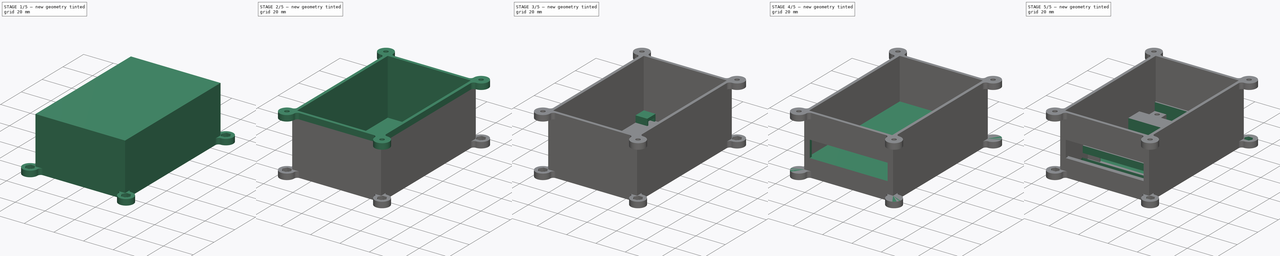
[diagram: build sequence overview — one tinted view per stage of 5, left to right]
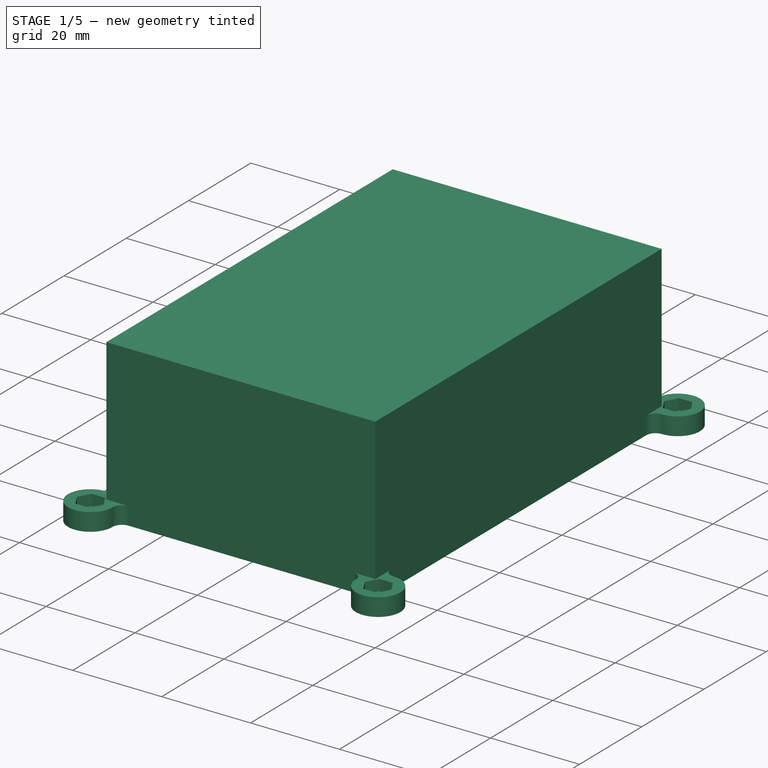
[diagram: stage 1 of 5 — iso view after this stage's code; geometry added in this stage tinted green]
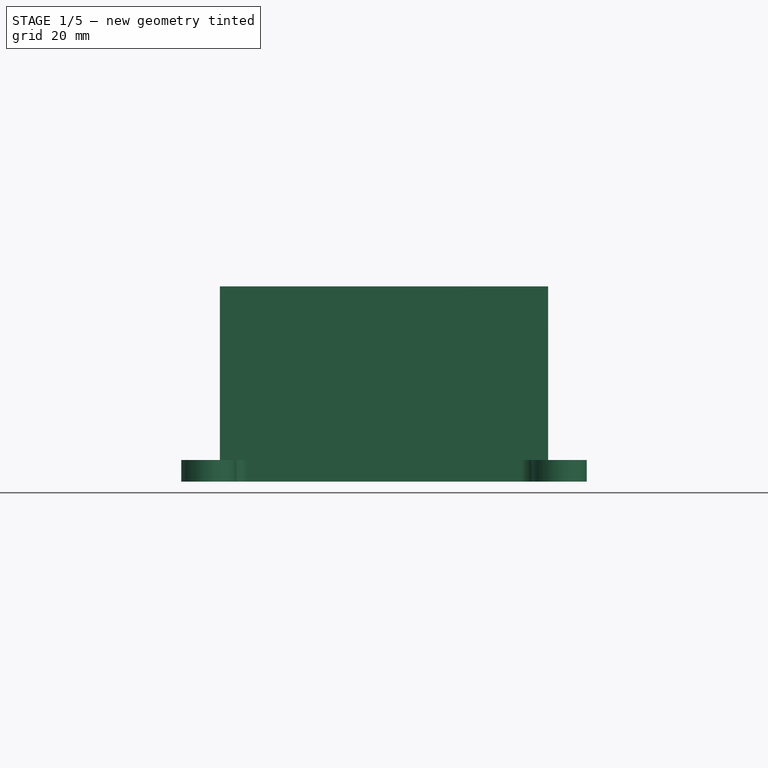
[diagram: stage 1 of 5 — front view after this stage's code; geometry added in this stage tinted green]
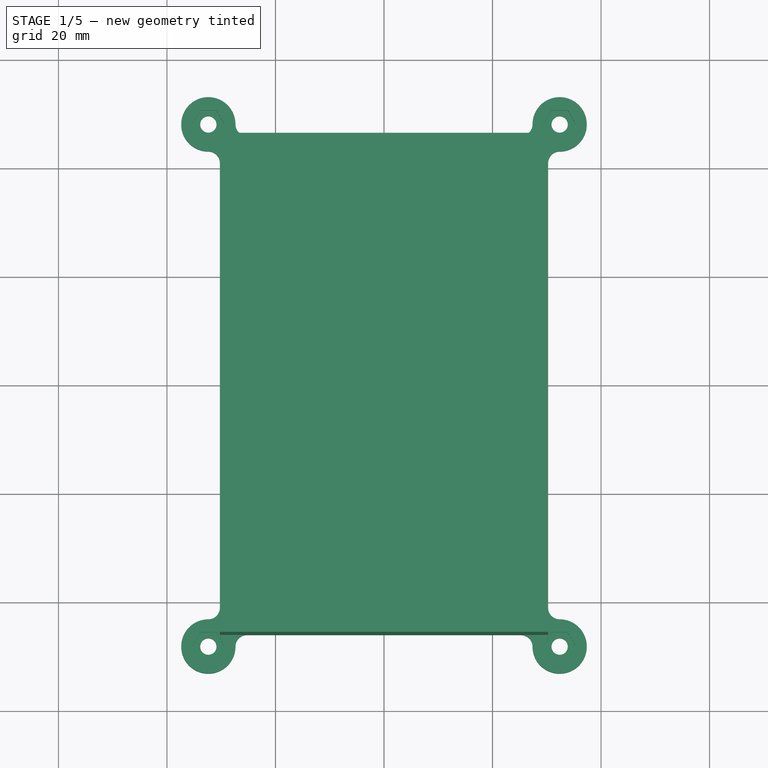
[diagram: stage 1 of 5 — top view after this stage's code; geometry added in this stage tinted green]
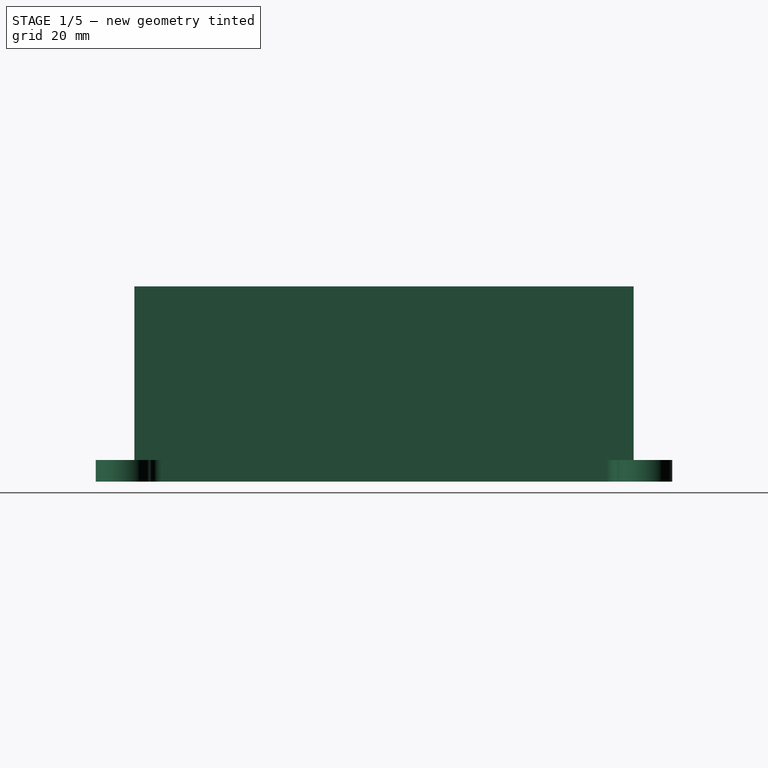
[diagram: stage 1 of 5 — right view after this stage's code; geometry added in this stage tinted green]
FCSTD DOCUMENT  (FreeCAD 1.0R39109 (Git))
Label: new fuselage
License: All rights reserved
LicenseURL: https://en.wikipedia.org/wiki/All_rights_reserved
objects: Sketcher::SketchObject×20, PartDesign::Pocket×13, PartDesign::Pad×6, PartDesign::Body×2
note: 99 computed .brp shape members not serialized (recipe doc carries the construction recipe); baked Part::Feature solids carry a one-line shape summary decoded from their .brp

FEATURE [PartDesign::Body] Body  label="Le Platform"
  AllowCompound = false
  Group = -> [Sketch,Pad,Sketch002,Sketch050,Sketch052,Pad001,Sketch051,Pocket,Pocket001,Pocket002,Sketch053,Pocket003]
  Origin = -> Origin
  Placement = pos=(0,0,1) rot=(0,0,1;0rad)
  Tip = -> Pocket003
FEATURE [Sketcher::SketchObject] Sketch054
  ArcFitTolerance = 0
  AttachmentSupport = -> [XY_Plane001]
  FullyConstrained = true
  MakeInternals = false
  MapMode = 5
  sketch-geometry (25):
    g0: ArcOfCircle CenterX=-32.3713 CenterY=48.1213 CenterZ=0 NormalX=0 NormalY=0 NormalZ=1 AngleXU=0 Radius=5 StartAngle=0 EndAngle=4.71239
    g1: ArcOfCircle CenterX=-25.25 CenterY=48.1213 CenterZ=0 NormalX=0 NormalY=0 NormalZ=1 AngleXU=0 Radius=2.12132 StartAngle=3.14159 EndAngle=4.71239
    g2: ArcOfCircle CenterX=-32.3713 CenterY=41 CenterZ=0 NormalX=0 NormalY=0 NormalZ=1 AngleXU=0 Radius=2.12132 StartAngle=-9e-16 EndAngle=1.5708
    g3: ArcOfCircle CenterX=32.3713 CenterY=48.1213 CenterZ=0 NormalX=0 NormalY=0 NormalZ=1 AngleXU=0 Radius=5 StartAngle=4.71239 EndAngle=9.42478
    g4: ArcOfCircle CenterX=25.25 CenterY=48.1213 CenterZ=0 NormalX=0 NormalY=0 NormalZ=1 AngleXU=0 Radius=2.12132 StartAngle=4.7124 EndAngle=6.28319
    g5: ArcOfCircle CenterX=32.3713 CenterY=41 CenterZ=0 NormalX=0 NormalY=0 NormalZ=1 AngleXU=0 Radius=2.12132 StartAngle=1.5708 EndAngle=3.14159
    g6: ArcOfCircle CenterX=-32.3713 CenterY=-48.1213 CenterZ=0 NormalX=0 NormalY=0 NormalZ=1 AngleXU=0 Radius=5 StartAngle=1.5708 EndAngle=6.28319
    g7: ArcOfCircle CenterX=-32.3713 CenterY=-41 CenterZ=0 NormalX=0 NormalY=0 NormalZ=1 AngleXU=0 Radius=2.12132 StartAngle=4.71239 EndAngle=6.28319
    g8: ArcOfCircle CenterX=-25.25 CenterY=-48.1213 CenterZ=0 NormalX=0 NormalY=0 NormalZ=1 AngleXU=0 Radius=2.12132 StartAngle=1.5708 EndAngle=3.14159
    g9: ArcOfCircle CenterX=32.3713 CenterY=-48.1213 CenterZ=0 NormalX=0 NormalY=0 NormalZ=1 AngleXU=0 Radius=5 StartAngle=3.14159 EndAngle=7.85398
    g10: ArcOfCircle CenterX=32.3713 CenterY=-41 CenterZ=0 NormalX=0 NormalY=0 NormalZ=1 AngleXU=0 Radius=2.12132 StartAngle=3.14159 EndAngle=4.71239
    g11: ArcOfCircle CenterX=25.25 CenterY=-48.1213 CenterZ=0 NormalX=0 NormalY=0 NormalZ=1 AngleXU=0 Radius=2.12132 StartAngle=2e-16 EndAngle=1.5708
    g12: LineSegment StartX=-25.25 StartY=-46 StartZ=0 EndX=25.25 EndY=-46 EndZ=0
    g13: LineSegment StartX=-30.25 StartY=41 StartZ=0 EndX=-30.25 EndY=-41 EndZ=0
    g14: LineSegment StartX=-25.25 StartY=46 StartZ=0 EndX=25.25 EndY=46 EndZ=0
    g15: LineSegment StartX=30.25 StartY=41 StartZ=0 EndX=30.25 EndY=-41 EndZ=0
    g16: LineSegment [constr] StartX=-25.25 StartY=46 StartZ=0 EndX=-30.25 EndY=46 EndZ=0
    g17: LineSegment [constr] StartX=-30.25 StartY=41 StartZ=0 EndX=-30.25 EndY=46 EndZ=0
    g18: LineSegment [constr] StartX=25.25 StartY=46 StartZ=0 EndX=30.25 EndY=46 EndZ=0
    g19: LineSegment [constr] StartX=30.25 StartY=41 StartZ=0 EndX=30.25 EndY=46 EndZ=0
    g20: LineSegment [constr] StartX=30.25 StartY=-41 StartZ=0 EndX=30.25 EndY=-46 EndZ=0
    g21: LineSegment [constr] StartX=25.25 StartY=-46 StartZ=0 EndX=30.25 EndY=-46 EndZ=0
    g22: LineSegment [constr] StartX=-30.25 StartY=-41 StartZ=0 EndX=-30.25 EndY=-46 EndZ=0
    g23: LineSegment [constr] StartX=-25.25 StartY=-46 StartZ=0 EndX=-30.25 EndY=-46 EndZ=0
    g24: Circle [constr] CenterX=-32.3713 CenterY=48.1213 CenterZ=0 NormalX=0 NormalY=0 NormalZ=1 AngleXU=0 Radius=3
  constraints (74):
    c: Radius(g0) = 5
    c: Coincident(g0,g1)
    c: Coincident(g2,g0)
    c: Equal(g0,g3)
    c: Symmetric(g0,g3,g-2)
    c: Horizontal(g3,g3)
    c: Vertical(g3,g3)
    c: Coincident(g4,g3)
    c: Coincident(g5,g3)
    c: Equal(g1,g4)
    c: Equal(g4,g5)
    c: Equal(g0,g6)
    c: Symmetric(g0,g6,g-1)
    c: Vertical(g6,g6)
    c: Horizontal(g6,g6)
    c: Coincident(g7,g6)
    c: Coincident(g8,g6)
    c: Equal(g3,g9)
    c: Symmetric(g6,g9,g-2)
    c: Coincident(g10,g9)
    c: Coincident(g11,g9)
    c: Horizontal(g9,g9)
    c: Vertical(g9,g9)
    c: Coincident(g12,g8)
    c: Coincident(g12,g11)
    c: Horizontal(g12)
    c: Tangent(g13,g2) = 1.5708
    c: Tangent(g14,g1) = -1.5708
    c: Coincident(g14,g4)
    c: Coincident(g15,g5)
    c: Tangent(g15,g10) = -1.5708
    c: Coincident(g16,g1)
    c: Horizontal(g16)
    c: Coincident(g17,g2)
    c: Coincident(g17,g16)
    c: Vertical(g17)
    c: DistanceX(g16,g-1) = 30.25
    c: DistanceY(g-1,g16) = 46
    c: Horizontal(g0,g0)
    c: Vertical(g0,g0)
    c: Coincident(g18,g4)
    c: Horizontal(g18)
    c: DistanceX(g16,g18) = 60.5
    c: Tangent(g20,g10) = -1.5708
    c: Vertical(g20)
    c: Coincident(g21,g11)
    c: Coincident(g21,g20)
    c: Horizontal(g21)
    c: Coincident(g22,g7)
    c: Vertical(g22)
    c: Tangent(g23,g8) = -1.5708
    c: Horizontal(g23)
    c: Coincident(g22,g23)
    c: DistanceY(g20,g18) = 92
    c: Horizontal(g1,g0)
    c: Vertical(g0,g2)
    c: Horizontal(g2,g2)
    c: Vertical(g1,g1)
    c: Horizontal(g3,g4)
    c: Horizontal(g5,g5)
    c: Coincident(g18,g19)
    c: Coincident(g5,g19)
    c: Vertical(g19)
    c: Vertical(g11,g11)
    c: Horizontal(g9,g11)
    c: Coincident(g24,g0)
    c: PointOnObject(g16,g24)
    c: Diameter(g24) = 6
    c: Equal(g7,g2)
    c: Equal(g1,g2)
    c: Equal(g10,g11)
    c: Equal(g8,g7)
    c: Coincident(g7,g13)
    c: Horizontal(g7,g7)
FEATURE [PartDesign::Pad] Pad002
  Direction = (0,0,1)
  Length = 4
  Length2 = 10
  Profile = -> Sketch054
  ReferenceAxis = -> Sketch054 [N_Axis]
  Suppressed = false
  Type = 0
FEATURE [Sketcher::SketchObject] Sketch058
  ArcFitTolerance = 1e-06
  AttachmentSupport = -> [Pad002]
  FullyConstrained = true
  MakeInternals = false
  MapMode = 5
  Placement = pos=(0,0,4) rot=(0,0,1;0rad)
  sketch-geometry (4):
    g0: LineSegment StartX=-30.25 StartY=46 StartZ=0 EndX=-30.25 EndY=-46 EndZ=0
    g1: LineSegment StartX=-30.25 StartY=-46 StartZ=0 EndX=30.25 EndY=-46 EndZ=0
    g2: LineSegment StartX=30.25 StartY=-46 StartZ=0 EndX=30.25 EndY=46 EndZ=0
    g3: LineSegment StartX=30.25 StartY=46 StartZ=0 EndX=-30.25 EndY=46 EndZ=0
  constraints (12):
    c: Coincident(g0,g1)
    c: Coincident(g1,g2)
    c: Coincident(g2,g3)
    c: Coincident(g3,g0)
    c: Vertical(g0)
    c: Vertical(g2)
    c: Horizontal(g1)
    c: Horizontal(g3)
    c: DistanceX(g2) = 30.25
    c: DistanceY(g2) = 46
    c: Distance(g3,g3) = 60.5
    c: DistanceY(g0,g0) = 92
FEATURE [PartDesign::Pad] Pad003
  BaseFeature = -> Pad002
  Direction = (0,0,1)
  Length = 32
  Length2 = 10
  Profile = -> Sketch058
  ReferenceAxis = -> Sketch058 [N_Axis]
  Refine = true
  Suppressed = false
  Type = 0
FEATURE [Sketcher::SketchObject] Sketch057
  ArcFitTolerance = 1e-06
  AttachmentSupport = -> [Pad003]
  FullyConstrained = true
  MakeInternals = false
  MapMode = 5
  Placement = pos=(0,0,4) rot=(0,0,1;0rad)
  sketch-geometry (28):
    g0: LineSegment StartX=-30.8713 StartY=50.7181 StartZ=0 EndX=-33.8713 EndY=50.7181 EndZ=0
    g1: LineSegment StartX=-33.8713 StartY=50.7181 StartZ=0 EndX=-35.3713 EndY=48.12 EndZ=0
    g2: LineSegment StartX=-35.3713 StartY=48.12 StartZ=0 EndX=-33.8713 EndY=45.5219 EndZ=0
    g3: LineSegment StartX=-33.8713 StartY=45.5219 StartZ=0 EndX=-30.8713 EndY=45.5219 EndZ=0
    g4: LineSegment StartX=-30.8713 StartY=45.5219 StartZ=0 EndX=-29.3713 EndY=48.12 EndZ=0
    g5: LineSegment StartX=-29.3713 StartY=48.12 StartZ=0 EndX=-30.8713 EndY=50.7181 EndZ=0
    g6: Circle [constr] CenterX=-32.3713 CenterY=48.12 CenterZ=0 NormalX=0 NormalY=0 NormalZ=1 AngleXU=0 Radius=3
    g7: LineSegment StartX=33.8713 StartY=50.7181 StartZ=0 EndX=30.8713 EndY=50.7181 EndZ=0
    g8: LineSegment StartX=30.8713 StartY=50.7181 StartZ=0 EndX=29.3713 EndY=48.12 EndZ=0
    g9: LineSegment StartX=29.3713 StartY=48.12 StartZ=0 EndX=30.8713 EndY=45.5219 EndZ=0
    g10: LineSegment StartX=30.8713 StartY=45.5219 StartZ=0 EndX=33.8713 EndY=45.5219 EndZ=0
    g11: LineSegment StartX=33.8713 StartY=45.5219 StartZ=0 EndX=35.3713 EndY=48.12 EndZ=0
    g12: LineSegment StartX=35.3713 StartY=48.12 StartZ=0 EndX=33.8713 EndY=50.7181 EndZ=0
    g13: Circle [constr] CenterX=32.3713 CenterY=48.12 CenterZ=0 NormalX=0 NormalY=0 NormalZ=1 AngleXU=0 Radius=3
    g14: LineSegment StartX=33.8713 StartY=-45.5219 StartZ=0 EndX=30.8713 EndY=-45.5219 EndZ=0
    g15: LineSegment StartX=30.8713 StartY=-45.5219 StartZ=0 EndX=29.3713 EndY=-48.12 EndZ=0
    g16: LineSegment StartX=29.3713 StartY=-48.12 StartZ=0 EndX=30.8713 EndY=-50.7181 EndZ=0
    g17: LineSegment StartX=30.8713 StartY=-50.7181 StartZ=0 EndX=33.8713 EndY=-50.7181 EndZ=0
    g18: LineSegment StartX=33.8713 StartY=-50.7181 StartZ=0 EndX=35.3713 EndY=-48.12 EndZ=0
    g19: LineSegment StartX=35.3713 StartY=-48.12 StartZ=0 EndX=33.8713 EndY=-45.5219 EndZ=0
    g20: Circle [constr] CenterX=32.3713 CenterY=-48.12 CenterZ=0 NormalX=0 NormalY=0 NormalZ=1 AngleXU=0 Radius=3
    g21: LineSegment StartX=-30.8713 StartY=-45.5219 StartZ=0 EndX=-33.8713 EndY=-45.5219 EndZ=0
    g22: LineSegment StartX=-33.8713 StartY=-45.5219 StartZ=0 EndX=-35.3713 EndY=-48.12 EndZ=0
    g23: LineSegment StartX=-35.3713 StartY=-48.12 StartZ=0 EndX=-33.8713 EndY=-50.7181 EndZ=0
    g24: LineSegment StartX=-33.8713 StartY=-50.7181 StartZ=0 EndX=-30.8713 EndY=-50.7181 EndZ=0
    g25: LineSegment StartX=-30.8713 StartY=-50.7181 StartZ=0 EndX=-29.3713 EndY=-48.12 EndZ=0
    g26: LineSegment StartX=-29.3713 StartY=-48.12 StartZ=0 EndX=-30.8713 EndY=-45.5219 EndZ=0
    g27: Circle [constr] CenterX=-32.3713 CenterY=-48.12 CenterZ=0 NormalX=0 NormalY=0 NormalZ=1 AngleXU=0 Radius=3
  constraints (65):
    c: Coincident(g0,g1)
    c: Coincident(g1,g2)
    c: Coincident(g2,g3)
    c: Coincident(g3,g4)
    c: Coincident(g4,g5)
    c: Coincident(g5,g0)
    c: Equal(g0, g1-g5) x5
    c: PointOnObject(g0,g6)
    c: PointOnObject(g1,g6)
    c: PointOnObject(g2,g6)
    c: PointOnObject(g3,g6)
    c: PointOnObject(g4,g6)
    c: PointOnObject(g5,g6)
    c: DistanceX(g6) = -32.3713
    c: DistanceY(g6) = 48.12
    c: Diameter(g6) = 6
    c: Horizontal(g6,g4)
    c: Coincident(g7,g8)
    c: Coincident(g8,g9)
    c: Coincident(g9,g10)
    c: Coincident(g10,g11)
    c: Coincident(g11,g12)
    c: Coincident(g12,g7)
    c: Equal(g7, g8-g12) x5
    c: PointOnObject(g7,g13)
    c: PointOnObject(g8,g13)
    c: PointOnObject(g9,g13)
    c: PointOnObject(g10,g13)
    c: PointOnObject(g11,g13)
    c: PointOnObject(g12,g13)
    c: Diameter(g13) = 6
    c: Symmetric(g13,g6,g-2)
    c: Coincident(g14,g15)
    c: Coincident(g15,g16)
    c: Coincident(g16,g17)
    c: Coincident(g17,g18)
    c: Coincident(g18,g19)
    c: Coincident(g19,g14)
    c: Equal(g14, g15-g19) x5
    c: PointOnObject(g14,g20)
    c: PointOnObject(g15,g20)
    c: PointOnObject(g16,g20)
    c: PointOnObject(g17,g20)
    c: PointOnObject(g18,g20)
    c: PointOnObject(g19,g20)
    c: Coincident(g21,g22)
    c: Coincident(g22,g23)
    c: Coincident(g23,g24)
    c: Coincident(g24,g25)
    c: Coincident(g25,g26)
    c: Coincident(g26,g21)
    c: Equal(g21, g22-g26) x5
    c: PointOnObject(g21,g27)
    c: PointOnObject(g22,g27)
    c: PointOnObject(g23,g27)
    c: PointOnObject(g24,g27)
    c: PointOnObject(g25,g27)
    c: PointOnObject(g26,g27)
    c: Horizontal(g16,g17)
    c: Horizontal(g23,g24)
    c: Diameter(g27) = 6
    c: Diameter(g20) = 6
    c: Symmetric(g20,g13,g-1)
    c: Symmetric(g20,g27,g-2)
    c: Horizontal(g7,g7)
FEATURE [PartDesign::Pocket] Pocket006
  BaseFeature = -> Pad003
  Direction = (0,0,-1)
  Length = 2.5
  Length2 = 5
  Profile = -> Sketch057
  ReferenceAxis = -> Sketch057 [N_Axis]
  Refine = true
  Suppressed = false
  Type = 0
FEATURE [Sketcher::SketchObject] Sketch059
  ArcFitTolerance = 1e-06
  AttachmentSupport = -> [Pocket006]
  FullyConstrained = true
  MakeInternals = false
  MapMode = 5
  Placement = pos=(0,0,1.5) rot=(0,0,1;0rad)
  sketch-geometry (4):
    g0: Circle CenterX=-32.3713 CenterY=48.12 CenterZ=0 NormalX=0 NormalY=0 NormalZ=1 AngleXU=0 Radius=1.5
    g1: Circle CenterX=32.3713 CenterY=48.12 CenterZ=0 NormalX=0 NormalY=0 NormalZ=1 AngleXU=0 Radius=1.5
    g2: Circle CenterX=-32.3713 CenterY=-48.12 CenterZ=0 NormalX=0 NormalY=0 NormalZ=1 AngleXU=0 Radius=1.5
    g3: Circle CenterX=32.3713 CenterY=-48.12 CenterZ=0 NormalX=0 NormalY=0 NormalZ=1 AngleXU=0 Radius=1.5
  constraints (9):
    c: Diameter(g0) = 3
    c: Equal(g0,g1)
    c: Equal(g3,g2)
    c: Symmetric(g0,g1,g-2)
    c: Symmetric(g3,g2,g-2)
    c: Symmetric(g0,g2,g-1)
    c: DistanceX(g0) = -32.3713
    c: DistanceY(g0) = 48.12
    c: Equal(g0,g2)
FEATURE [PartDesign::Pocket] Pocket007
  BaseFeature = -> Pocket006
  Direction = (0,0,-1)
  Length = 1.5
  Length2 = 5
  Profile = -> Sketch059
  ReferenceAxis = -> Sketch059 [N_Axis]
  Refine = true
  Suppressed = false
  Type = 0
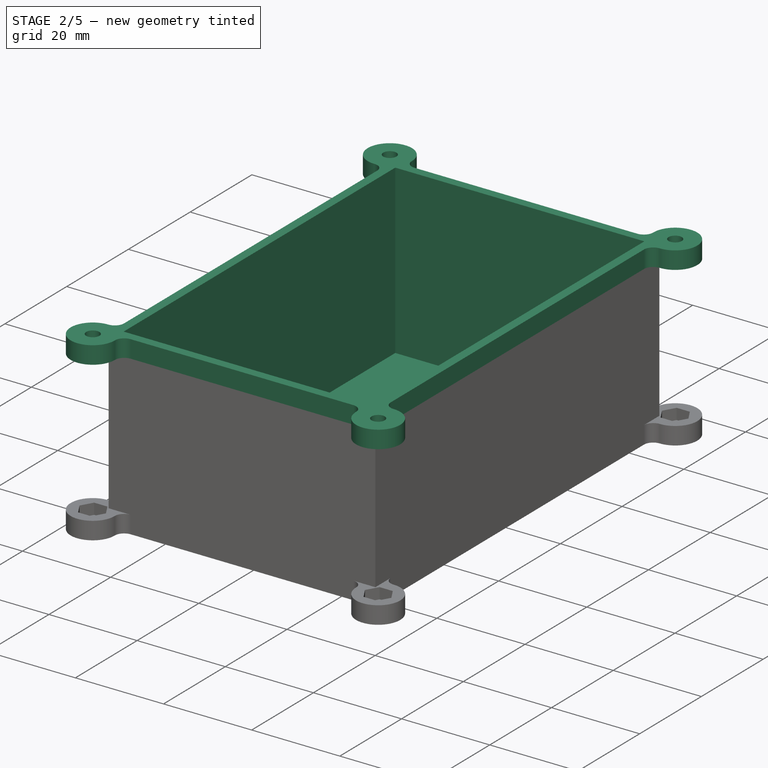
[diagram: stage 2 of 5 — iso view after this stage's code; geometry added in this stage tinted green]
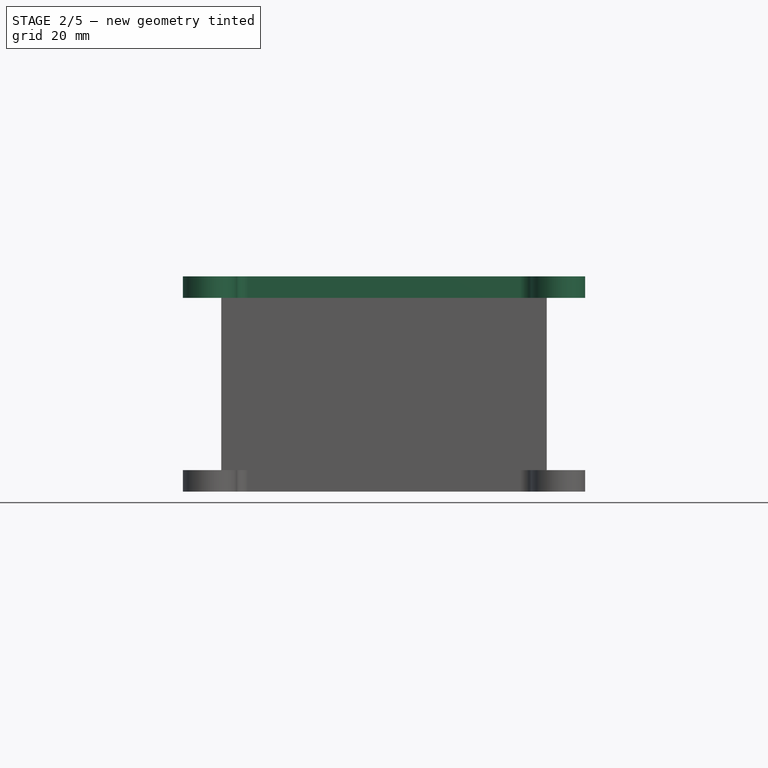
[diagram: stage 2 of 5 — front view after this stage's code; geometry added in this stage tinted green]
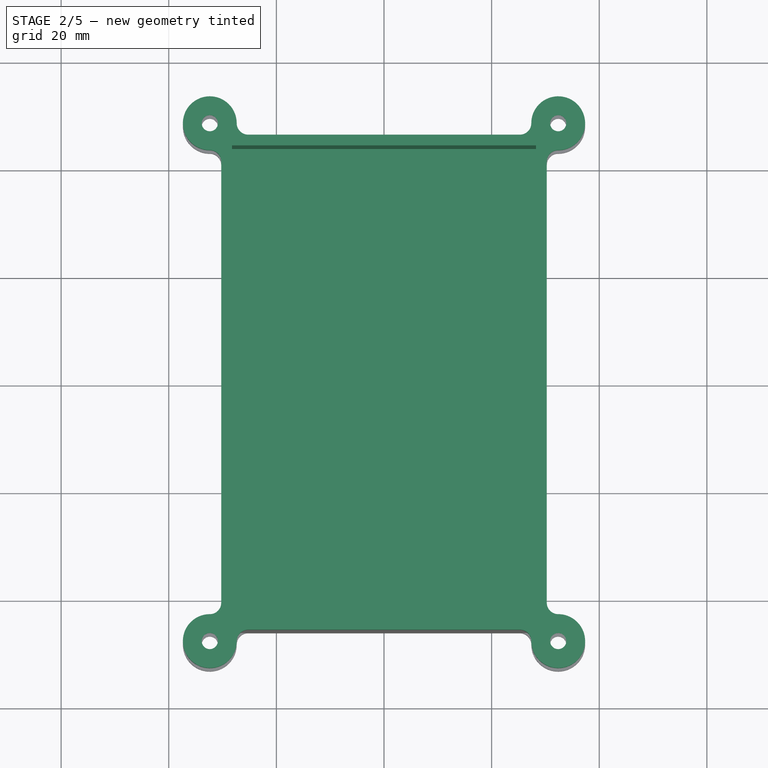
[diagram: stage 2 of 5 — top view after this stage's code; geometry added in this stage tinted green]
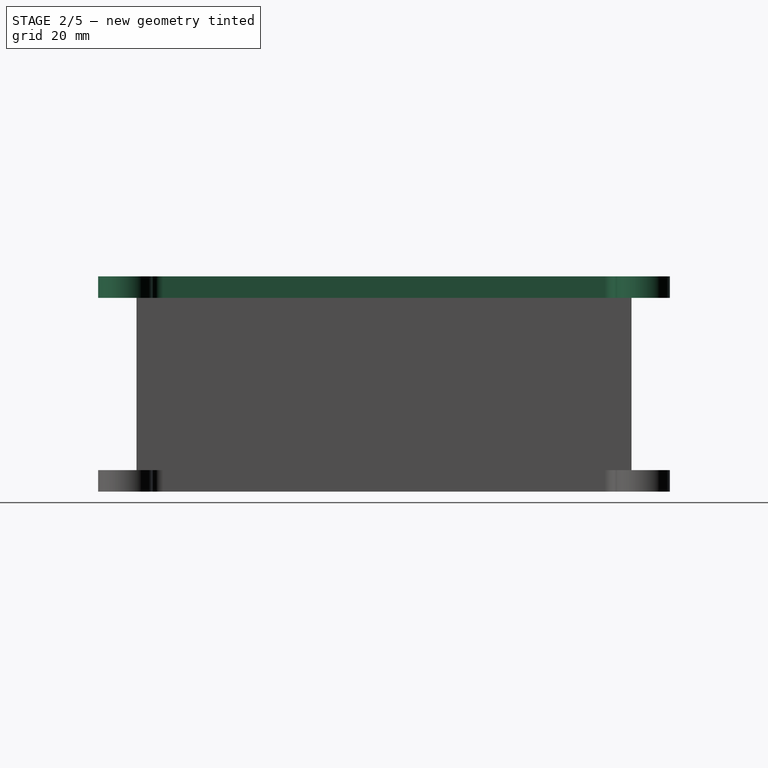
[diagram: stage 2 of 5 — right view after this stage's code; geometry added in this stage tinted green]
FEATURE [Sketcher::SketchObject] Sketch060
  ArcFitTolerance = 0
  AttachmentSupport = -> [Pocket007]
  FullyConstrained = true
  MakeInternals = false
  MapMode = 5
  Placement = pos=(0,0,36) rot=(0,0,1;0rad)
  sketch-geometry (25):
    g0: ArcOfCircle CenterX=-32.3713 CenterY=48.1213 CenterZ=0 NormalX=0 NormalY=0 NormalZ=1 AngleXU=0 Radius=5 StartAngle=0 EndAngle=4.71239
    g1: ArcOfCircle CenterX=-25.25 CenterY=48.1213 CenterZ=0 NormalX=0 NormalY=0 NormalZ=1 AngleXU=0 Radius=2.12132 StartAngle=3.14159 EndAngle=4.71239
    g2: ArcOfCircle CenterX=-32.3713 CenterY=41 CenterZ=0 NormalX=0 NormalY=0 NormalZ=1 AngleXU=0 Radius=2.12132 StartAngle=-9e-16 EndAngle=1.5708
    g3: ArcOfCircle CenterX=32.3713 CenterY=48.1213 CenterZ=0 NormalX=0 NormalY=0 NormalZ=1 AngleXU=0 Radius=5 StartAngle=4.71239 EndAngle=9.42478
    g4: ArcOfCircle CenterX=25.25 CenterY=48.1213 CenterZ=0 NormalX=0 NormalY=0 NormalZ=1 AngleXU=0 Radius=2.12132 StartAngle=4.7124 EndAngle=6.28319
    g5: ArcOfCircle CenterX=32.3713 CenterY=41 CenterZ=0 NormalX=0 NormalY=0 NormalZ=1 AngleXU=0 Radius=2.12132 StartAngle=1.5708 EndAngle=3.14159
    g6: ArcOfCircle CenterX=-32.3713 CenterY=-48.1213 CenterZ=0 NormalX=0 NormalY=0 NormalZ=1 AngleXU=0 Radius=5 StartAngle=1.5708 EndAngle=6.28319
    g7: ArcOfCircle CenterX=-32.3713 CenterY=-41 CenterZ=0 NormalX=0 NormalY=0 NormalZ=1 AngleXU=0 Radius=2.12132 StartAngle=4.71239 EndAngle=6.28319
    g8: ArcOfCircle CenterX=-25.25 CenterY=-48.1213 CenterZ=0 NormalX=0 NormalY=0 NormalZ=1 AngleXU=0 Radius=2.12132 StartAngle=1.5708 EndAngle=3.14159
    g9: ArcOfCircle CenterX=32.3713 CenterY=-48.1213 CenterZ=0 NormalX=0 NormalY=0 NormalZ=1 AngleXU=0 Radius=5 StartAngle=3.14159 EndAngle=7.85398
    g10: ArcOfCircle CenterX=32.3713 CenterY=-41 CenterZ=0 NormalX=0 NormalY=0 NormalZ=1 AngleXU=0 Radius=2.12132 StartAngle=3.14159 EndAngle=4.71239
    g11: ArcOfCircle CenterX=25.25 CenterY=-48.1213 CenterZ=0 NormalX=0 NormalY=0 NormalZ=1 AngleXU=0 Radius=2.12132 StartAngle=2e-16 EndAngle=1.5708
    g12: LineSegment StartX=-25.25 StartY=-46 StartZ=0 EndX=25.25 EndY=-46 EndZ=0
    g13: LineSegment StartX=-30.25 StartY=41 StartZ=0 EndX=-30.25 EndY=-41 EndZ=0
    g14: LineSegment StartX=-25.25 StartY=46 StartZ=0 EndX=25.25 EndY=46 EndZ=0
    g15: LineSegment StartX=30.25 StartY=41 StartZ=0 EndX=30.25 EndY=-41 EndZ=0
    g16: LineSegment [constr] StartX=-25.25 StartY=46 StartZ=0 EndX=-30.25 EndY=46 EndZ=0
    g17: LineSegment [constr] StartX=-30.25 StartY=41 StartZ=0 EndX=-30.25 EndY=46 EndZ=0
    g18: LineSegment [constr] StartX=25.25 StartY=46 StartZ=0 EndX=30.25 EndY=46 EndZ=0
    g19: LineSegment [constr] StartX=30.25 StartY=41 StartZ=0 EndX=30.25 EndY=46 EndZ=0
    g20: LineSegment [constr] StartX=30.25 StartY=-41 StartZ=0 EndX=30.25 EndY=-46 EndZ=0
    g21: LineSegment [constr] StartX=25.25 StartY=-46 StartZ=0 EndX=30.25 EndY=-46 EndZ=0
    g22: LineSegment [constr] StartX=-30.25 StartY=-41 StartZ=0 EndX=-30.25 EndY=-46 EndZ=0
    g23: LineSegment [constr] StartX=-25.25 StartY=-46 StartZ=0 EndX=-30.25 EndY=-46 EndZ=0
    g24: Circle [constr] CenterX=-32.3713 CenterY=48.1213 CenterZ=0 NormalX=0 NormalY=0 NormalZ=1 AngleXU=0 Radius=3
  constraints (74):
    c: Radius(g0) = 5
    c: Coincident(g0,g1)
    c: Coincident(g2,g0)
    c: Equal(g0,g3)
    c: Symmetric(g0,g3,g-2)
    c: Horizontal(g3,g3)
    c: Vertical(g3,g3)
    c: Coincident(g4,g3)
    c: Coincident(g5,g3)
    c: Equal(g1,g4)
    c: Equal(g4,g5)
    c: Equal(g0,g6)
    c: Symmetric(g0,g6,g-1)
    c: Vertical(g6,g6)
    c: Horizontal(g6,g6)
    c: Coincident(g7,g6)
    c: Coincident(g8,g6)
    c: Equal(g3,g9)
    c: Symmetric(g6,g9,g-2)
    c: Coincident(g10,g9)
    c: Coincident(g11,g9)
    c: Horizontal(g9,g9)
    c: Vertical(g9,g9)
    c: Coincident(g12,g8)
    c: Coincident(g12,g11)
    c: Horizontal(g12)
    c: Tangent(g13,g2) = 1.5708
    c: Tangent(g14,g1) = -1.5708
    c: Coincident(g14,g4)
    c: Coincident(g15,g5)
    c: Tangent(g15,g10) = -1.5708
    c: Coincident(g16,g1)
    c: Horizontal(g16)
    c: Coincident(g17,g2)
    c: Coincident(g17,g16)
    c: Vertical(g17)
    c: DistanceX(g16,g-1) = 30.25
    c: DistanceY(g-1,g16) = 46
    c: Horizontal(g0,g0)
    c: Vertical(g0,g0)
    c: Coincident(g18,g4)
    c: Horizontal(g18)
    c: DistanceX(g16,g18) = 60.5
    c: Tangent(g20,g10) = -1.5708
    c: Vertical(g20)
    c: Coincident(g21,g11)
    c: Coincident(g21,g20)
    c: Horizontal(g21)
    c: Coincident(g22,g7)
    c: Vertical(g22)
    c: Tangent(g23,g8) = -1.5708
    c: Horizontal(g23)
    c: Coincident(g22,g23)
    c: DistanceY(g20,g18) = 92
    c: Horizontal(g1,g0)
    c: Vertical(g0,g2)
    c: Horizontal(g2,g2)
    c: Vertical(g1,g1)
    c: Horizontal(g3,g4)
    c: Horizontal(g5,g5)
    c: Coincident(g18,g19)
    c: Coincident(g5,g19)
    c: Vertical(g19)
    c: Vertical(g11,g11)
    c: Horizontal(g9,g11)
    c: Coincident(g24,g0)
    c: PointOnObject(g16,g24)
    c: Diameter(g24) = 6
    c: Equal(g7,g2)
    c: Equal(g1,g2)
    c: Equal(g10,g11)
    c: Equal(g8,g7)
    c: Coincident(g7,g13)
    c: Horizontal(g7,g7)
FEATURE [PartDesign::Pad] Pad004
  BaseFeature = -> Pocket007
  Direction = (0,0,1)
  Length = 4
  Length2 = 10
  Profile = -> Sketch060
  ReferenceAxis = -> Sketch060 [N_Axis]
  Refine = true
  Suppressed = false
  Type = 0
FEATURE [Sketcher::SketchObject] Sketch061
  ArcFitTolerance = 1e-06
  AttachmentSupport = -> [Pad004]
  FullyConstrained = true
  MakeInternals = false
  MapMode = 5
  Placement = pos=(0,0,40) rot=(0,0,1;0rad)
  sketch-geometry (4):
    g0: LineSegment StartX=-28.25 StartY=44 StartZ=0 EndX=-28.25 EndY=-44 EndZ=0
    g1: LineSegment StartX=-28.25 StartY=-44 StartZ=0 EndX=28.25 EndY=-44 EndZ=0
    g2: LineSegment StartX=28.25 StartY=-44 StartZ=0 EndX=28.25 EndY=44 EndZ=0
    g3: LineSegment StartX=28.25 StartY=44 StartZ=0 EndX=-28.25 EndY=44 EndZ=0
  constraints (12):
    c: Coincident(g0,g1)
    c: Coincident(g1,g2)
    c: Coincident(g2,g3)
    c: Coincident(g3,g0)
    c: Vertical(g0)
    c: Vertical(g2)
    c: Horizontal(g1)
    c: Horizontal(g3)
    c: DistanceY(g0,g0) = 88
    c: DistanceX(g3,g3) = 56.5
    c: DistanceX(g2) = 28.25
    c: DistanceY(g2) = 44
FEATURE [PartDesign::Pocket] Pocket008
  BaseFeature = -> Pad004
  Direction = (0,0,-1)
  Length = 38
  Length2 = 5
  Profile = -> Sketch061
  ReferenceAxis = -> Sketch061 [N_Axis]
  Refine = true
  Suppressed = false
  Type = 0
FEATURE [Sketcher::SketchObject] Sketch062
  ArcFitTolerance = 1e-06
  AttachmentSupport = -> [Pocket008]
  FullyConstrained = true
  MakeInternals = false
  MapMode = 5
  Placement = pos=(0,0,36) rot=(1,0,0;3.14159rad)
  sketch-geometry (4):
    g0: Circle CenterX=-32.3713 CenterY=48.12 CenterZ=0 NormalX=0 NormalY=0 NormalZ=1 AngleXU=0 Radius=2.55
    g1: Circle CenterX=32.3713 CenterY=48.12 CenterZ=0 NormalX=0 NormalY=0 NormalZ=1 AngleXU=0 Radius=2.55
    g2: Circle CenterX=-32.3713 CenterY=-48.12 CenterZ=0 NormalX=0 NormalY=0 NormalZ=1 AngleXU=0 Radius=2.55
    g3: Circle CenterX=32.3713 CenterY=-48.12 CenterZ=0 NormalX=0 NormalY=0 NormalZ=1 AngleXU=0 Radius=2.55
  constraints (9):
    c: Diameter(g1) = 5.1
    c: Equal(g1,g0)
    c: Equal(g1,g3)
    c: Equal(g2,g3)
    c: Symmetric(g0,g1,g-2)
    c: Symmetric(g2,g3,g-2)
    c: Symmetric(g1,g3,g-1)
    c: DistanceX(g1) = 32.3713
    c: DistanceY(g1) = 48.12
FEATURE [PartDesign::Pocket] Pocket009
  BaseFeature = -> Pocket008
  Direction = (0,0,1)
  Length = 2.5
  Length2 = 5
  Profile = -> Sketch062
  ReferenceAxis = -> Sketch062 [N_Axis]
  Refine = true
  Suppressed = false
  Type = 0
FEATURE [Sketcher::SketchObject] Sketch063
  ArcFitTolerance = 1e-06
  AttachmentSupport = -> [Pocket009]
  FullyConstrained = true
  MakeInternals = false
  MapMode = 5
  Placement = pos=(0,0,40) rot=(0,0,1;0rad)
  sketch-geometry (4):
    g0: Circle CenterX=-32.3713 CenterY=48.12 CenterZ=0 NormalX=0 NormalY=0 NormalZ=1 AngleXU=0 Radius=1.5
    g1: Circle CenterX=32.3713 CenterY=48.12 CenterZ=0 NormalX=0 NormalY=0 NormalZ=1 AngleXU=0 Radius=1.5
    g2: Circle CenterX=-32.3713 CenterY=-48.12 CenterZ=0 NormalX=0 NormalY=0 NormalZ=1 AngleXU=0 Radius=1.5
    g3: Circle CenterX=32.3713 CenterY=-48.12 CenterZ=0 NormalX=0 NormalY=0 NormalZ=1 AngleXU=0 Radius=1.5
  constraints (9):
    c: Diameter(g0) = 3
    c: Diameter(g1) = 3
    c: Diameter(g2) = 3
    c: Diameter(g3) = 3
    c: Symmetric(g0,g1,g-2)
    c: Symmetric(g2,g3,g-2)
    c: Symmetric(g0,g2,g-1)
    c: DistanceX(g1) = 32.3713
    c: DistanceY(g1) = 48.12
FEATURE [PartDesign::Pocket] Pocket010
  BaseFeature = -> Pocket009
  Direction = (0,0,-1)
  Length = 1.5
  Length2 = 5
  Profile = -> Sketch063
  ReferenceAxis = -> Sketch063 [N_Axis]
  Refine = true
  Suppressed = false
  Type = 0
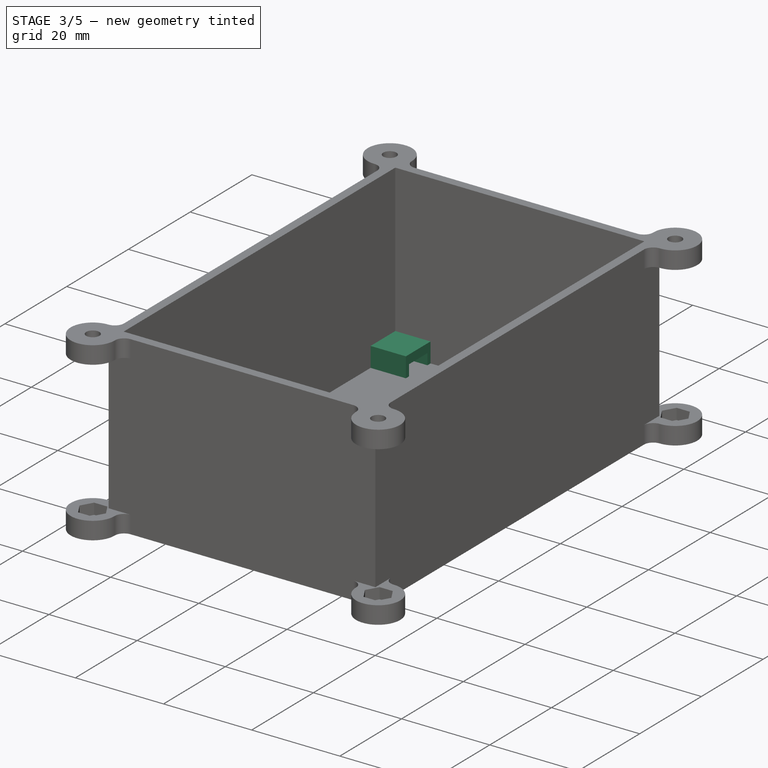
[diagram: stage 3 of 5 — iso view after this stage's code; geometry added in this stage tinted green]
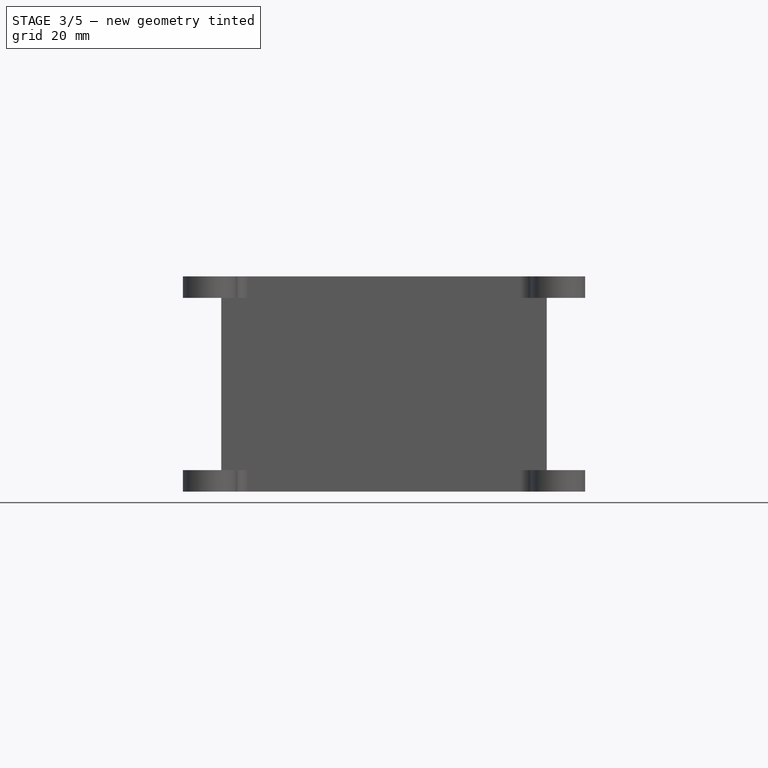
[diagram: stage 3 of 5 — front view after this stage's code; geometry added in this stage tinted green]
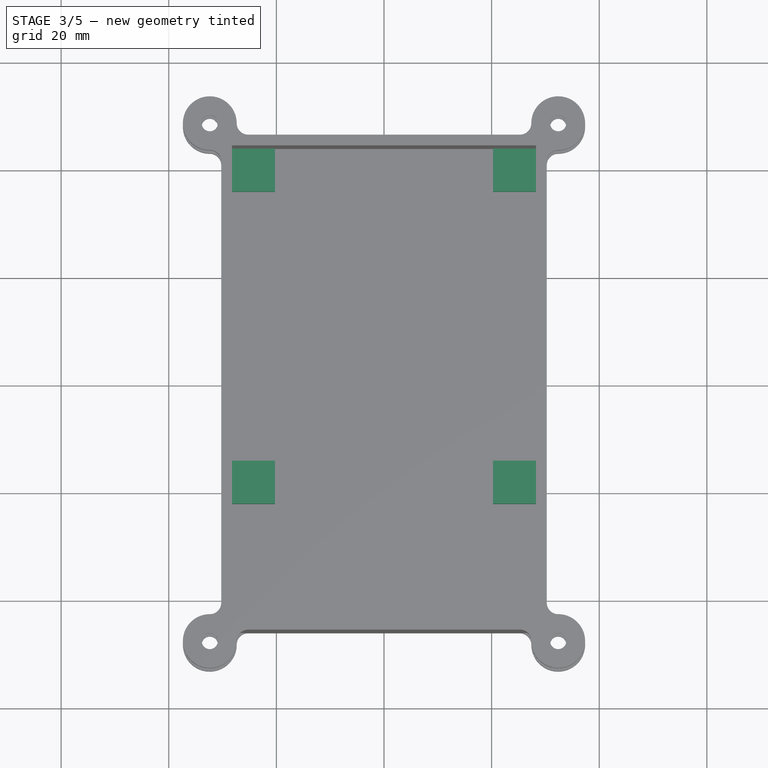
[diagram: stage 3 of 5 — top view after this stage's code; geometry added in this stage tinted green]
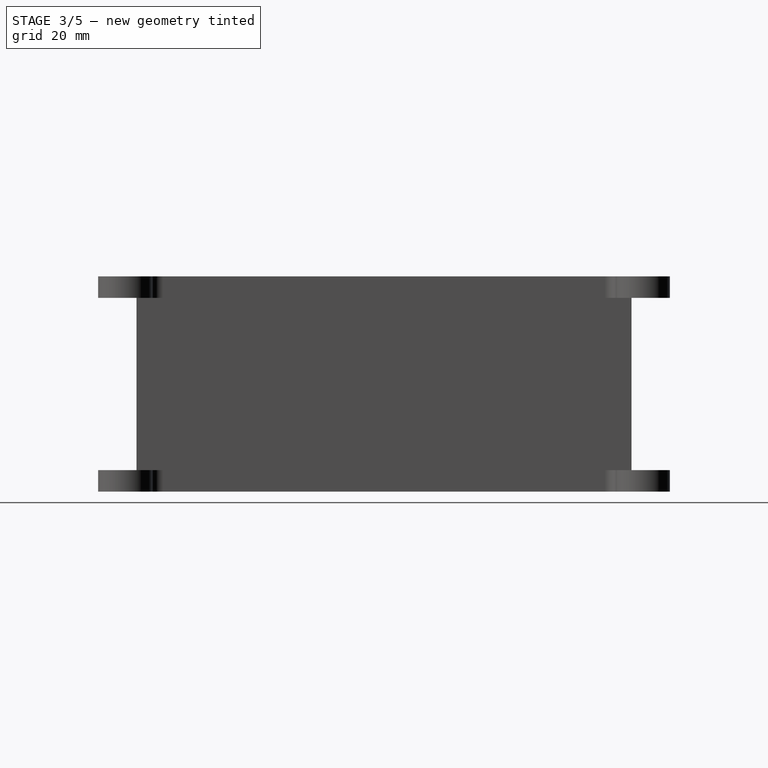
[diagram: stage 3 of 5 — right view after this stage's code; geometry added in this stage tinted green]
FEATURE [Sketcher::SketchObject] Sketch064
  ArcFitTolerance = 1e-06
  AttachmentSupport = -> [Pocket010]
  FullyConstrained = true
  MakeInternals = false
  MapMode = 5
  Placement = pos=(0,0,2) rot=(0,0,1;0rad)
  sketch-geometry (16):
    g0: LineSegment StartX=-28.25 StartY=44 StartZ=0 EndX=-28.25 EndY=36 EndZ=0
    g1: LineSegment StartX=-28.25 StartY=36 StartZ=0 EndX=-20.25 EndY=36 EndZ=0
    g2: LineSegment StartX=-20.25 StartY=36 StartZ=0 EndX=-20.25 EndY=44 EndZ=0
    g3: LineSegment StartX=-20.25 StartY=44 StartZ=0 EndX=-28.25 EndY=44 EndZ=0
    g4: LineSegment StartX=28.25 StartY=44 StartZ=0 EndX=20.25 EndY=44 EndZ=0
    g5: LineSegment StartX=20.25 StartY=44 StartZ=0 EndX=20.25 EndY=36 EndZ=0
    g6: LineSegment StartX=20.25 StartY=36 StartZ=0 EndX=28.25 EndY=36 EndZ=0
    g7: LineSegment StartX=28.25 StartY=36 StartZ=0 EndX=28.25 EndY=44 EndZ=0
    g8: LineSegment StartX=-28.25 StartY=-14 StartZ=0 EndX=-28.25 EndY=-22 EndZ=0
    g9: LineSegment StartX=-28.25 StartY=-22 StartZ=0 EndX=-20.25 EndY=-22 EndZ=0
    g10: LineSegment StartX=-20.25 StartY=-22 StartZ=0 EndX=-20.25 EndY=-14 EndZ=0
    g11: LineSegment StartX=-20.25 StartY=-14 StartZ=0 EndX=-28.25 EndY=-14 EndZ=0
    g12: LineSegment StartX=28.25 StartY=-14 StartZ=0 EndX=20.25 EndY=-14 EndZ=0
    g13: LineSegment StartX=20.25 StartY=-14 StartZ=0 EndX=20.25 EndY=-22 EndZ=0
    g14: LineSegment StartX=20.25 StartY=-22 StartZ=0 EndX=28.25 EndY=-22 EndZ=0
    g15: LineSegment StartX=28.25 StartY=-22 StartZ=0 EndX=28.25 EndY=-14 EndZ=0
  constraints (46):
    c: Coincident(g0,g1)
    c: Coincident(g1,g2)
    c: Coincident(g2,g3)
    c: Coincident(g3,g0)
    c: Vertical(g0)
    c: Vertical(g2)
    c: Horizontal(g1)
    c: Horizontal(g3)
    c: Coincident(g4,g5)
    c: Coincident(g5,g6)
    c: Coincident(g6,g7)
    c: Coincident(g7,g4)
    c: Horizontal(g4)
    c: Horizontal(g6)
    c: Vertical(g5)
    c: Vertical(g7)
    c: Coincident(g8,g9)
    c: Coincident(g9,g10)
    c: Coincident(g10,g11)
    c: Coincident(g11,g8)
    c: Vertical(g8)
    c: Vertical(g10)
    c: Horizontal(g9)
    c: Horizontal(g11)
    c: Coincident(g12,g13)
    c: Coincident(g13,g14)
    c: Coincident(g14,g15)
    c: Coincident(g15,g12)
    c: Horizontal(g12)
    c: Horizontal(g14)
    c: Vertical(g13)
    c: Vertical(g15)
    c: Distance(g3,g3) = 8
    c: DistanceY(g2,g2) = 8
    c: DistanceX(g0) = -28.25
    c: DistanceY(g0) = 44
    c: Equal(g2,g5)
    c: Equal(g6,g1)
    c: Symmetric(g2,g4,g-2)
    c: DistanceY(g12,g5) = 50
    c: Equal(g6,g12)
    c: Equal(g5,g13)
    c: Equal(g10,g13)
    c: Equal(g12,g11)
    c: Symmetric(g10,g12,g-2)
    c: Vertical(g1,g10)
FEATURE [PartDesign::Pad] Pad005
  BaseFeature = -> Pocket010
  Direction = (0,0,1)
  Length = 4.5
  Length2 = 10
  Profile = -> Sketch064
  ReferenceAxis = -> Sketch064 [N_Axis]
  Refine = true
  Suppressed = false
  Type = 0
FEATURE [Sketcher::SketchObject] Sketch065
  ArcFitTolerance = 1e-06
  AttachmentSupport = -> [Pad005]
  FullyConstrained = true
  MakeInternals = false
  MapMode = 5
  Placement = pos=(-20.25,0,0) rot=(0.57735,0.57735,0.57735;2.0944rad)
  sketch-geometry (8):
    g0: LineSegment StartX=-21 StartY=4.5 StartZ=0 EndX=-21 EndY=2 EndZ=0
    g1: LineSegment StartX=-21 StartY=2 StartZ=0 EndX=-15 EndY=2 EndZ=0
    g2: LineSegment StartX=-15 StartY=2 StartZ=0 EndX=-15 EndY=4.5 EndZ=0
    g3: LineSegment StartX=-15 StartY=4.5 StartZ=0 EndX=-21 EndY=4.5 EndZ=0
    g4: LineSegment StartX=37 StartY=4.5 StartZ=0 EndX=37 EndY=2 EndZ=0
    g5: LineSegment StartX=37 StartY=2 StartZ=0 EndX=43 EndY=2 EndZ=0
    g6: LineSegment StartX=43 StartY=2 StartZ=0 EndX=43 EndY=4.5 EndZ=0
    g7: LineSegment StartX=43 StartY=4.5 StartZ=0 EndX=37 EndY=4.5 EndZ=0
  constraints (24):
    c: Coincident(g0,g1)
    c: Coincident(g1,g2)
    c: Coincident(g2,g3)
    c: Coincident(g3,g0)
    c: Vertical(g0)
    c: Vertical(g2)
    c: Horizontal(g1)
    c: Horizontal(g3)
    c: Coincident(g4,g5)
    c: Coincident(g5,g6)
    c: Coincident(g6,g7)
    c: Coincident(g7,g4)
    c: Vertical(g4)
    c: Vertical(g6)
    c: Horizontal(g5)
    c: Horizontal(g7)
    c: Distance(g7,g7) = 6
    c: Distance(g4,g4) = 2.5
    c: Distance(g2,g2) = 2.5
    c: Distance(g3,g3) = 6
    c: DistanceX(g5) = 43
    c: DistanceY(g5) = 2
    c: DistanceX(g2,g4) = 52
    c: Horizontal(g2,g4)
FEATURE [PartDesign::Pocket] Pocket011
  BaseFeature = -> Pad005
  Direction = (-1,0,0)
  Length = 8
  Length2 = 5
  Profile = -> Sketch065
  ReferenceAxis = -> Sketch065 [N_Axis]
  Refine = true
  Suppressed = false
  Type = 0
FEATURE [Sketcher::SketchObject] Sketch066
  ArcFitTolerance = 1e-06
  AttachmentSupport = -> [Pocket011]
  FullyConstrained = true
  MakeInternals = false
  MapMode = 5
  Placement = pos=(20.25,0,0) rot=(0.57735,-0.57735,-0.57735;2.0944rad)
  sketch-geometry (8):
    g0: LineSegment StartX=-43 StartY=4.5 StartZ=0 EndX=-43 EndY=2 EndZ=0
    g1: LineSegment StartX=-43 StartY=2 StartZ=0 EndX=-37 EndY=2 EndZ=0
    g2: LineSegment StartX=-37 StartY=2 StartZ=0 EndX=-37 EndY=4.5 EndZ=0
    g3: LineSegment StartX=-37 StartY=4.5 StartZ=0 EndX=-43 EndY=4.5 EndZ=0
    g4: LineSegment StartX=15 StartY=4.5 StartZ=0 EndX=15 EndY=2 EndZ=0
    g5: LineSegment StartX=15 StartY=2 StartZ=0 EndX=21 EndY=2 EndZ=0
    g6: LineSegment StartX=21 StartY=2 StartZ=0 EndX=21 EndY=4.5 EndZ=0
    g7: LineSegment StartX=21 StartY=4.5 StartZ=0 EndX=15 EndY=4.5 EndZ=0
  constraints (24):
    c: Coincident(g0,g1)
    c: Coincident(g1,g2)
    c: Coincident(g2,g3)
    c: Coincident(g3,g0)
    c: Vertical(g0)
    c: Vertical(g2)
    c: Horizontal(g1)
    c: Horizontal(g3)
    c: Coincident(g4,g5)
    c: Coincident(g5,g6)
    c: Coincident(g6,g7)
    c: Coincident(g7,g4)
    c: Vertical(g4)
    c: Vertical(g6)
    c: Horizontal(g5)
    c: Horizontal(g7)
    c: DistanceX(g3,g3) = 6
    c: Equal(g7,g3)
    c: DistanceY(g2,g2) = 2.5
    c: Equal(g2,g4)
    c: DistanceX(g0) = -43
    c: DistanceY(g0) = 2
    c: DistanceX(g2,g4) = 52
    c: Horizontal(g1,g4)
FEATURE [PartDesign::Pocket] Pocket012
  BaseFeature = -> Pocket011
  Direction = (1,0,0)
  Length = 8
  Length2 = 5
  Profile = -> Sketch066
  ReferenceAxis = -> Sketch066 [N_Axis]
  Refine = true
  Suppressed = false
  Type = 0
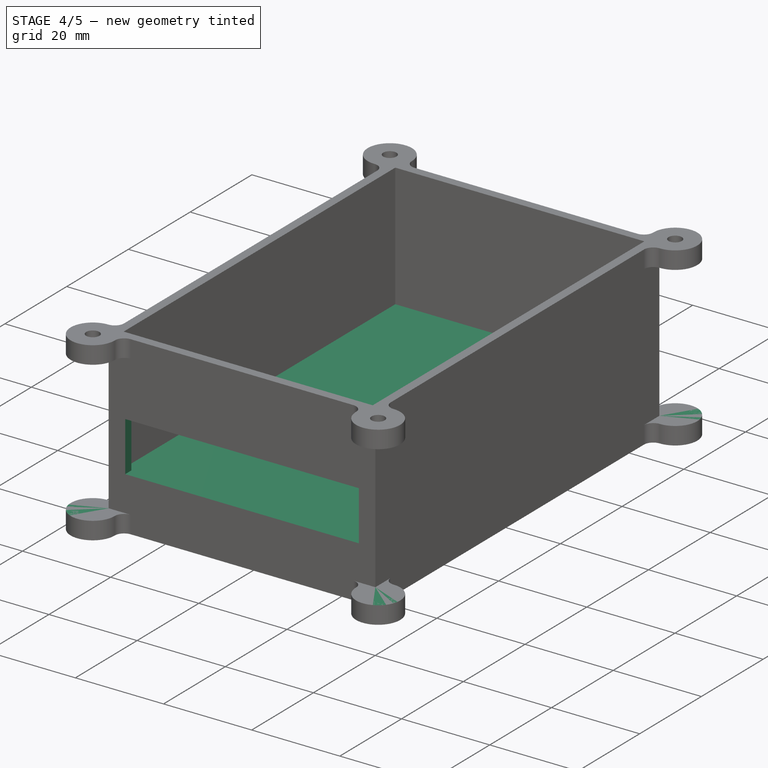
[diagram: stage 4 of 5 — iso view after this stage's code; geometry added in this stage tinted green]
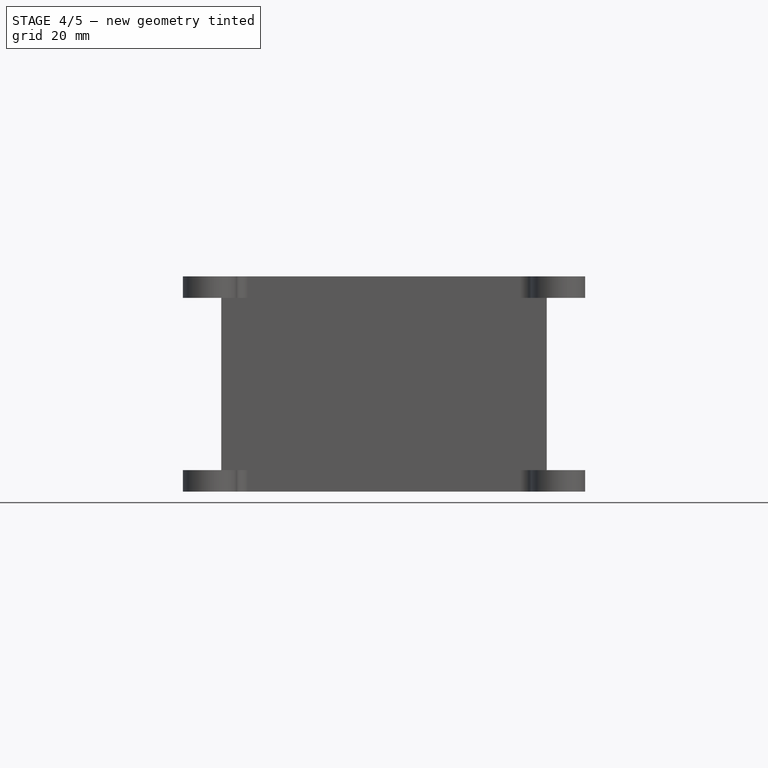
[diagram: stage 4 of 5 — front view after this stage's code; geometry added in this stage tinted green]
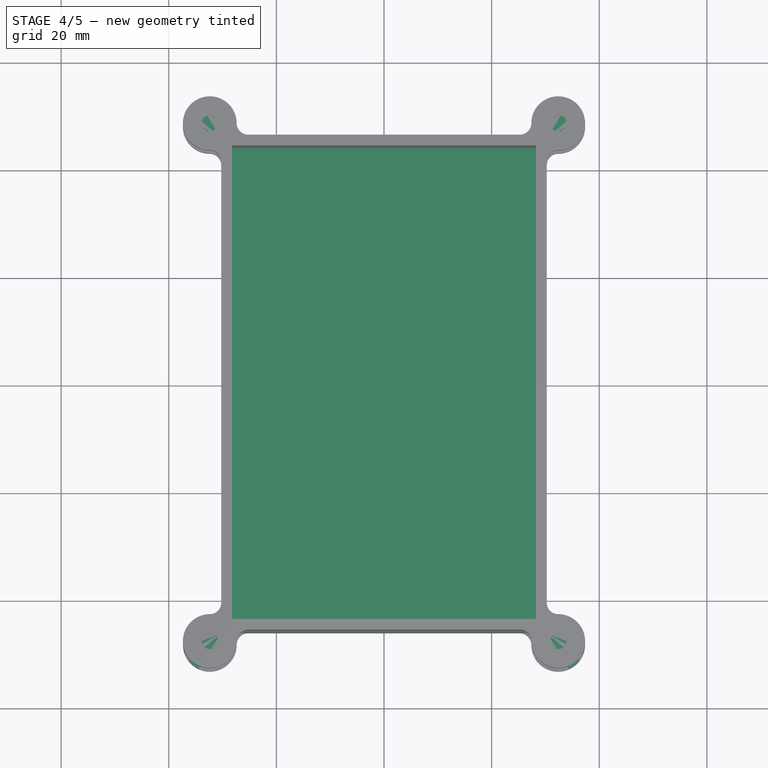
[diagram: stage 4 of 5 — top view after this stage's code; geometry added in this stage tinted green]
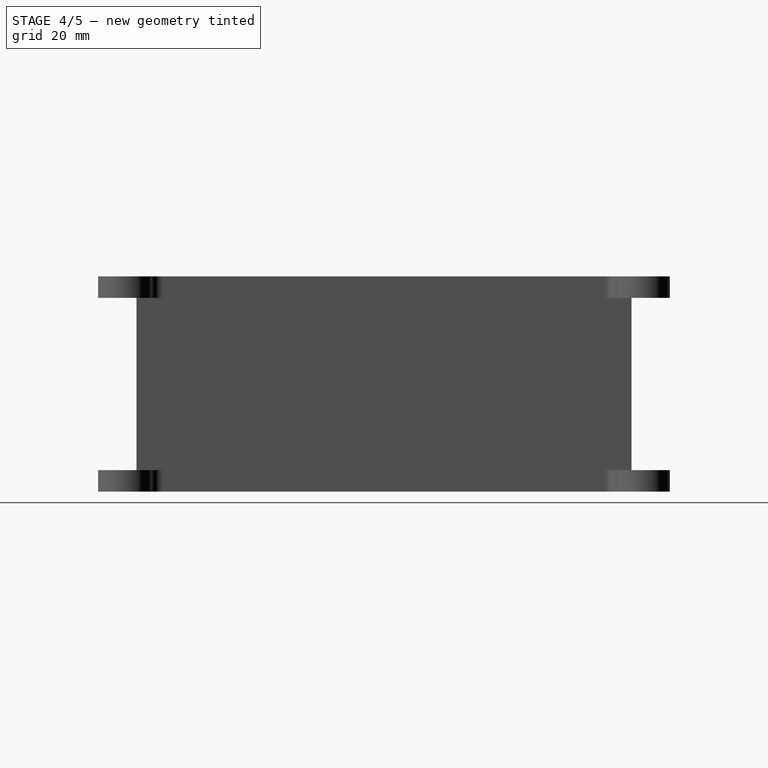
[diagram: stage 4 of 5 — right view after this stage's code; geometry added in this stage tinted green]
FEATURE [Sketcher::SketchObject] Sketch
  ArcFitTolerance = 0
  AttachmentSupport = -> [XY_Plane]
  FullyConstrained = true
  MakeInternals = false
  MapMode = 5
  sketch-geometry (25):
    g0: ArcOfCircle CenterX=-32.3713 CenterY=48.1213 CenterZ=0 NormalX=0 NormalY=0 NormalZ=1 AngleXU=0 Radius=5 StartAngle=0 EndAngle=4.71239
    g1: ArcOfCircle CenterX=-25.25 CenterY=48.1213 CenterZ=0 NormalX=0 NormalY=0 NormalZ=1 AngleXU=0 Radius=2.12132 StartAngle=3.14159 EndAngle=4.71239
    g2: ArcOfCircle CenterX=-32.3713 CenterY=41 CenterZ=0 NormalX=0 NormalY=0 NormalZ=1 AngleXU=0 Radius=2.12132 StartAngle=-9e-16 EndAngle=1.5708
    g3: ArcOfCircle CenterX=32.3713 CenterY=48.1213 CenterZ=0 NormalX=0 NormalY=0 NormalZ=1 AngleXU=0 Radius=5 StartAngle=4.71239 EndAngle=9.42478
    g4: ArcOfCircle CenterX=25.25 CenterY=48.1213 CenterZ=0 NormalX=0 NormalY=0 NormalZ=1 AngleXU=0 Radius=2.12132 StartAngle=4.7124 EndAngle=6.28319
    g5: ArcOfCircle CenterX=32.3713 CenterY=41 CenterZ=0 NormalX=0 NormalY=0 NormalZ=1 AngleXU=0 Radius=2.12132 StartAngle=1.5708 EndAngle=3.14159
    g6: ArcOfCircle CenterX=-32.3713 CenterY=-48.1213 CenterZ=0 NormalX=0 NormalY=0 NormalZ=1 AngleXU=0 Radius=5 StartAngle=1.5708 EndAngle=6.28319
    g7: ArcOfCircle CenterX=-32.3713 CenterY=-41 CenterZ=0 NormalX=0 NormalY=0 NormalZ=1 AngleXU=0 Radius=2.12132 StartAngle=4.71239 EndAngle=6.28319
    g8: ArcOfCircle CenterX=-25.25 CenterY=-48.1213 CenterZ=0 NormalX=0 NormalY=0 NormalZ=1 AngleXU=0 Radius=2.12132 StartAngle=1.5708 EndAngle=3.14159
    g9: ArcOfCircle CenterX=32.3713 CenterY=-48.1213 CenterZ=0 NormalX=0 NormalY=0 NormalZ=1 AngleXU=0 Radius=5 StartAngle=3.14159 EndAngle=7.85398
    g10: ArcOfCircle CenterX=32.3713 CenterY=-41 CenterZ=0 NormalX=0 NormalY=0 NormalZ=1 AngleXU=0 Radius=2.12132 StartAngle=3.14159 EndAngle=4.71239
    g11: ArcOfCircle CenterX=25.25 CenterY=-48.1213 CenterZ=0 NormalX=0 NormalY=0 NormalZ=1 AngleXU=0 Radius=2.12132 StartAngle=3e-16 EndAngle=1.5708
    g12: LineSegment StartX=-25.25 StartY=-46 StartZ=0 EndX=25.25 EndY=-46 EndZ=0
    g13: LineSegment StartX=-30.25 StartY=41 StartZ=0 EndX=-30.25 EndY=-41 EndZ=0
    g14: LineSegment StartX=-25.25 StartY=46 StartZ=0 EndX=25.25 EndY=46 EndZ=0
    g15: LineSegment StartX=30.25 StartY=41 StartZ=0 EndX=30.25 EndY=-41 EndZ=0
    g16: LineSegment [constr] StartX=-25.25 StartY=46 StartZ=0 EndX=-30.25 EndY=46 EndZ=0
    g17: LineSegment [constr] StartX=-30.25 StartY=41 StartZ=0 EndX=-30.25 EndY=46 EndZ=0
    g18: LineSegment [constr] StartX=25.25 StartY=46 StartZ=0 EndX=30.25 EndY=46 EndZ=0
    g19: LineSegment [constr] StartX=30.25 StartY=41 StartZ=0 EndX=30.25 EndY=46 EndZ=0
    g20: LineSegment [constr] StartX=30.25 StartY=-41 StartZ=0 EndX=30.25 EndY=-46 EndZ=0
    g21: LineSegment [constr] StartX=25.25 StartY=-46 StartZ=0 EndX=30.25 EndY=-46 EndZ=0
    g22: LineSegment [constr] StartX=-30.25 StartY=-41 StartZ=0 EndX=-30.25 EndY=-46 EndZ=0
    g23: LineSegment [constr] StartX=-25.25 StartY=-46 StartZ=0 EndX=-30.25 EndY=-46 EndZ=0
    g24: Circle [constr] CenterX=-32.3713 CenterY=48.1213 CenterZ=0 NormalX=0 NormalY=0 NormalZ=1 AngleXU=0 Radius=3
  constraints (74):
    c: Radius(g0) = 5
    c: Coincident(g0,g1)
    c: Coincident(g2,g0)
    c: Equal(g0,g3)
    c: Symmetric(g0,g3,g-2)
    c: Horizontal(g3,g3)
    c: Vertical(g3,g3)
    c: Coincident(g4,g3)
    c: Coincident(g5,g3)
    c: Equal(g1,g4)
    c: Equal(g4,g5)
    c: Equal(g0,g6)
    c: Symmetric(g0,g6,g-1)
    c: Vertical(g6,g6)
    c: Horizontal(g6,g6)
    c: Coincident(g7,g6)
    c: Coincident(g8,g6)
    c: Equal(g3,g9)
    c: Symmetric(g6,g9,g-2)
    c: Coincident(g10,g9)
    c: Coincident(g11,g9)
    c: Horizontal(g9,g9)
    c: Vertical(g9,g9)
    c: Coincident(g12,g8)
    c: Coincident(g12,g11)
    c: Horizontal(g12)
    c: Tangent(g13,g2) = 1.5708
    c: Tangent(g14,g1) = -1.5708
    c: Coincident(g14,g4)
    c: Coincident(g15,g5)
    c: Tangent(g15,g10) = -1.5708
    c: Coincident(g16,g1)
    c: Horizontal(g16)
    c: Coincident(g17,g2)
    c: Coincident(g17,g16)
    c: Vertical(g17)
    c: DistanceX(g16,g-1) = 30.25
    c: DistanceY(g-1,g16) = 46
    c: Horizontal(g0,g0)
    c: Vertical(g0,g0)
    c: Coincident(g18,g4)
    c: Horizontal(g18)
    c: DistanceX(g16,g18) = 60.5
    c: Tangent(g20,g10) = -1.5708
    c: Vertical(g20)
    c: Coincident(g21,g11)
    c: Coincident(g21,g20)
    c: Horizontal(g21)
    c: Coincident(g22,g7)
    c: Vertical(g22)
    c: Tangent(g23,g8) = -1.5708
    c: Horizontal(g23)
    c: Coincident(g22,g23)
    c: DistanceY(g20,g18) = 92
    c: Horizontal(g1,g0)
    c: Vertical(g0,g2)
    c: Horizontal(g2,g2)
    c: Vertical(g1,g1)
    c: Horizontal(g3,g4)
    c: Horizontal(g5,g5)
    c: Coincident(g18,g19)
    c: Coincident(g5,g19)
    c: Vertical(g19)
    c: Vertical(g11,g11)
    c: Horizontal(g9,g11)
    c: Coincident(g24,g0)
    c: PointOnObject(g16,g24)
    c: Diameter(g24) = 6
    c: Equal(g7,g2)
    c: Equal(g1,g2)
    c: Equal(g10,g11)
    c: Equal(g8,g7)
    c: Coincident(g7,g13)
    c: Horizontal(g7,g7)
FEATURE [PartDesign::Pad] Pad
  Direction = (0,0,1)
  Length = 4
  Length2 = 10
  Profile = -> Sketch
  ReferenceAxis = -> Sketch [N_Axis]
  Suppressed = false
  Type = 0
FEATURE [Sketcher::SketchObject] Sketch052
  ArcFitTolerance = 1e-06
  AttachmentSupport = -> [Pad]
  FullyConstrained = true
  MakeInternals = false
  MapMode = 5
  Placement = pos=(0,0,4) rot=(0,0,1;0rad)
  sketch-geometry (4):
    g0: LineSegment StartX=-30.25 StartY=46 StartZ=0 EndX=-30.25 EndY=-46 EndZ=0
    g1: LineSegment StartX=-30.25 StartY=-46 StartZ=0 EndX=30.25 EndY=-46 EndZ=0
    g2: LineSegment StartX=30.25 StartY=-46 StartZ=0 EndX=30.25 EndY=46 EndZ=0
    g3: LineSegment StartX=30.25 StartY=46 StartZ=0 EndX=-30.25 EndY=46 EndZ=0
  constraints (12):
    c: Coincident(g0,g1)
    c: Coincident(g1,g2)
    c: Coincident(g2,g3)
    c: Coincident(g3,g0)
    c: Vertical(g0)
    c: Vertical(g2)
    c: Horizontal(g1)
    c: Horizontal(g3)
    c: DistanceX(g2) = 30.25
    c: DistanceY(g2) = 46
    c: Distance(g3,g3) = 60.5
    c: DistanceY(g0,g0) = 92
FEATURE [PartDesign::Pad] Pad001
  BaseFeature = -> Pad
  Direction = (0,0,1)
  Length = 8
  Length2 = 10
  Profile = -> Sketch052
  ReferenceAxis = -> Sketch052 [N_Axis]
  Refine = true
  Suppressed = false
  Type = 0
FEATURE [Sketcher::SketchObject] Sketch067
  ArcFitTolerance = 1e-06
  AttachmentSupport = -> [Pocket012]
  FullyConstrained = true
  MakeInternals = false
  MapMode = 5
  Placement = pos=(0,0,6.5) rot=(0,0,1;0rad)
  sketch-geometry (4):
    g0: Circle CenterX=-24.5 CenterY=40 CenterZ=0 NormalX=0 NormalY=0 NormalZ=1 AngleXU=0 Radius=1.5
    g1: Circle CenterX=24.5 CenterY=40 CenterZ=0 NormalX=0 NormalY=0 NormalZ=1 AngleXU=0 Radius=1.5
    g2: Circle CenterX=-24.5 CenterY=-18 CenterZ=0 NormalX=0 NormalY=0 NormalZ=1 AngleXU=0 Radius=1.5
    g3: Circle CenterX=24.5 CenterY=-18 CenterZ=0 NormalX=0 NormalY=0 NormalZ=1 AngleXU=0 Radius=1.5
  constraints (12):
    c: Diameter(g0) = 3
    c: Diameter(g1) = 3
    c: Diameter(g2) = 3
    c: Diameter(g3) = 3
    c: Vertical(g0,g2)
    c: Vertical(g3,g1)
    c: Horizontal(g0,g1)
    c: Horizontal(g2,g3)
    c: DistanceX(g0,g1) = 49
    c: DistanceY(g2,g0) = 58
    c: DistanceX(g1) = 24.5
    c: DistanceY(g1) = 40
FEATURE [PartDesign::Pocket] Pocket013
  BaseFeature = -> Pocket012
  Direction = (0,0,-1)
  Length = 2
  Length2 = 5
  Profile = -> Sketch067
  ReferenceAxis = -> Sketch067 [N_Axis]
  Refine = true
  Suppressed = false
  Type = 0
FEATURE [Sketcher::SketchObject] Sketch068
  ArcFitTolerance = 1e-06
  AttachmentSupport = -> [Pocket013]
  FullyConstrained = true
  MakeInternals = false
  MapMode = 5
  Placement = pos=(0,-46,0) rot=(1,0,0;1.5708rad)
  sketch-geometry (4):
    g0: LineSegment StartX=-26.5 StartY=23.3 StartZ=0 EndX=-26.5 EndY=8 EndZ=0
    g1: LineSegment StartX=-26.5 StartY=8 StartZ=0 EndX=26.5 EndY=8 EndZ=0
    g2: LineSegment StartX=26.5 StartY=8 StartZ=0 EndX=26.5 EndY=23.3 EndZ=0
    g3: LineSegment StartX=26.5 StartY=23.3 StartZ=0 EndX=-26.5 EndY=23.3 EndZ=0
  constraints (12):
    c: Coincident(g0,g1)
    c: Coincident(g1,g2)
    c: Coincident(g2,g3)
    c: Coincident(g3,g0)
    c: Vertical(g0)
    c: Vertical(g2)
    c: Horizontal(g1)
    c: Horizontal(g3)
    c: DistanceX(g0) = -26.5
    c: DistanceY(g0) = 8
    c: DistanceX(g-1,g1) = 26.5
    c: DistanceY(g2,g2) = 15.3
FEATURE [PartDesign::Pocket] Pocket014
  BaseFeature = -> Pocket013
  Direction = (0,1,-2e-16)
  Length = 2
  Length2 = 5
  Profile = -> Sketch068
  ReferenceAxis = -> Sketch068 [N_Axis]
  Refine = true
  Suppressed = false
  Type = 0
FEATURE [Sketcher::SketchObject] Sketch069
  ArcFitTolerance = 1e-06
  AttachmentSupport = -> [Pocket014]
  FullyConstrained = true
  MakeInternals = false
  MapMode = 5
  Placement = pos=(-30.25,0,0) rot=(0.57735,-0.57735,-0.57735;2.0944rad)
  sketch-geometry (11):
    g0: Circle CenterX=10.1 CenterY=10.6 CenterZ=0 NormalX=0 NormalY=0 NormalZ=1 AngleXU=0 Radius=3
    g1: LineSegment StartX=-19.15 StartY=13.35 StartZ=0 EndX=-19.15 EndY=7.35 EndZ=0
    g2: LineSegment StartX=-19.15 StartY=7.35 StartZ=0 EndX=-3.65 EndY=7.35 EndZ=0
    g3: LineSegment StartX=-3.65 StartY=7.35 StartZ=0 EndX=-3.65 EndY=13.35 EndZ=0
    g4: LineSegment StartX=-3.65 StartY=13.35 StartZ=0 EndX=-19.15 EndY=13.35 EndZ=0
    g5: LineSegment StartX=-37.15 StartY=10.85 StartZ=0 EndX=-37.15 EndY=7.35 EndZ=0
    g6: LineSegment StartX=-37.15 StartY=7.35 StartZ=0 EndX=-27.65 EndY=7.35 EndZ=0
    g7: LineSegment StartX=-27.65 StartY=7.35 StartZ=0 EndX=-27.65 EndY=10.85 EndZ=0
    g8: LineSegment StartX=-27.65 StartY=10.85 StartZ=0 EndX=-37.15 EndY=10.85 EndZ=0
    g9: GeomPoint [constr] X=10.1 Y=7.6 Z=0
    g10: GeomPoint [constr] X=7.1 Y=10.6 Z=0
  constraints (31):
    c: Coincident(g1,g2)
    c: Coincident(g2,g3)
    c: Coincident(g3,g4)
    c: Coincident(g4,g1)
    c: Vertical(g1)
    c: Vertical(g3)
    c: Horizontal(g2)
    c: Horizontal(g4)
    c: Coincident(g5,g6)
    c: Coincident(g6,g7)
    c: Coincident(g7,g8)
    c: Coincident(g8,g5)
    c: Vertical(g5)
    c: Vertical(g7)
    c: Horizontal(g6)
    c: Horizontal(g8)
    c: Diameter(g0) = 6
    c: DistanceX(g0) = 10.1
    c: DistanceY(g0) = 10.6
    c: DistanceX(g4,g4) = 15.5
    c: PointOnObject(g9,g0)
    c: Vertical(g0,g9)
    c: PointOnObject(g10,g0)
    c: Horizontal(g10,g0)
    c: DistanceX(g3,g10) = 10.75
    c: DistanceY(g3,g3) = 6
    c: DistanceY(g2,g9) = 0.25
    c: DistanceY(g7,g7) = 3.5
    c: Horizontal(g6,g1)
    c: DistanceX(g8,g8) = 9.5
    c: DistanceX(g7,g1) = 8.5
FEATURE [PartDesign::Body] Body001  label="FC_Bay"
  AllowCompound = false
  Group = -> [Sketch054,Pad002,Sketch058,Sketch057,Sketch059,Pad003,Pocket006,Pocket007,Sketch060,Pad004,Sketch061,Pocket008,Sketch062,Pocket009,Sketch063,Pocket010,Sketch064,Pad005,Sketch065,Pocket011,Sketch066,Pocket012,Sketch067,Pocket013,Sketch068,Pocket014,Sketch069]
  Origin = -> Origin001
  Placement = pos=(0,0,1) rot=(0,0,1;0rad)
  Tip = -> Pocket014
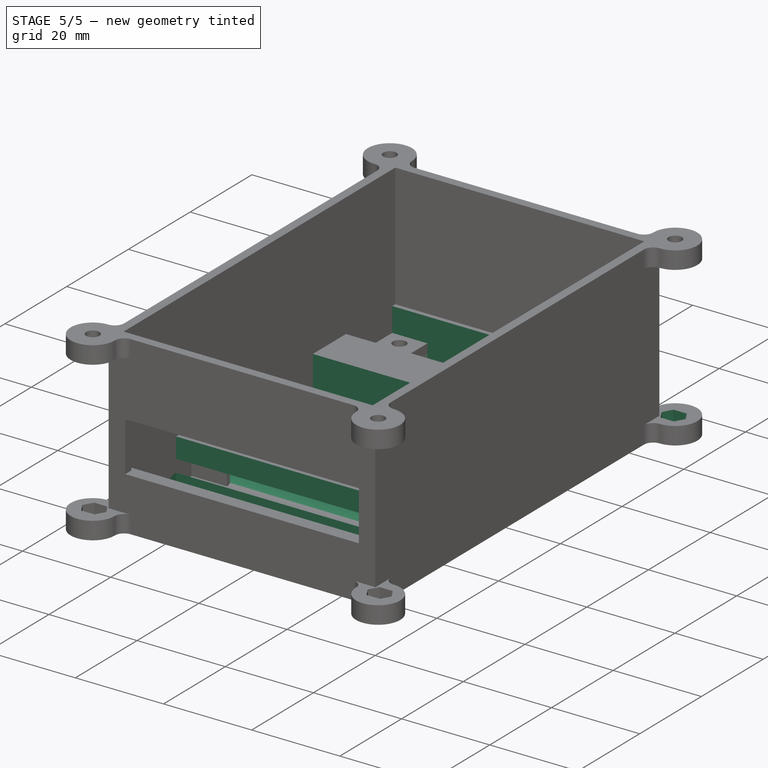
[diagram: stage 5 of 5 — iso view after this stage's code; geometry added in this stage tinted green]
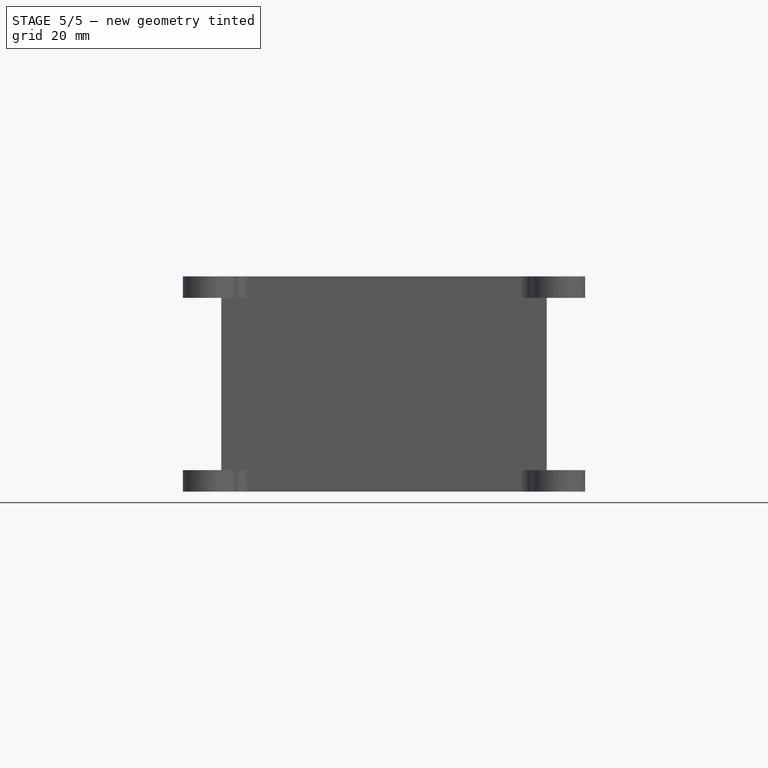
[diagram: stage 5 of 5 — front view after this stage's code; geometry added in this stage tinted green]
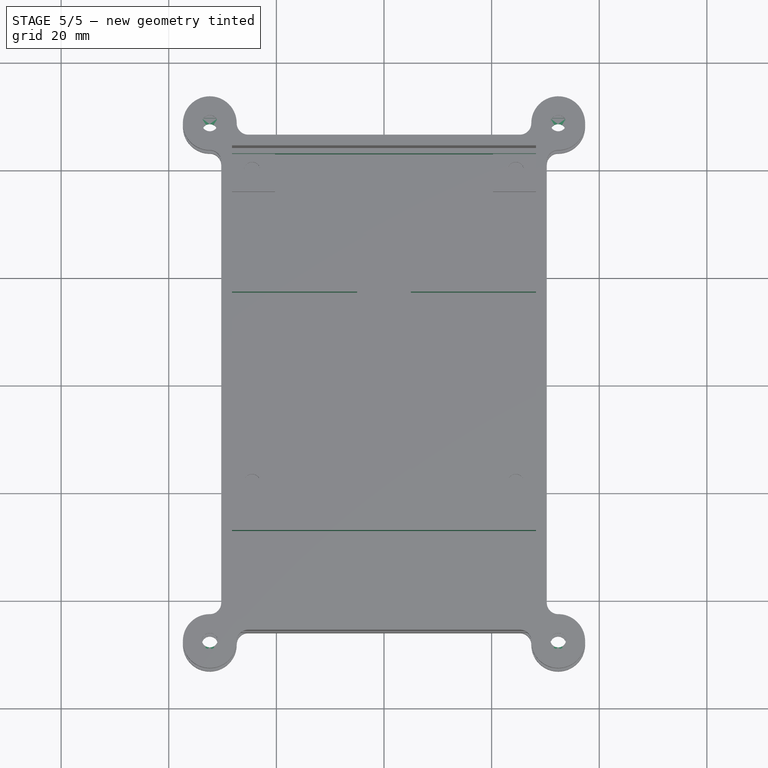
[diagram: stage 5 of 5 — top view after this stage's code; geometry added in this stage tinted green]
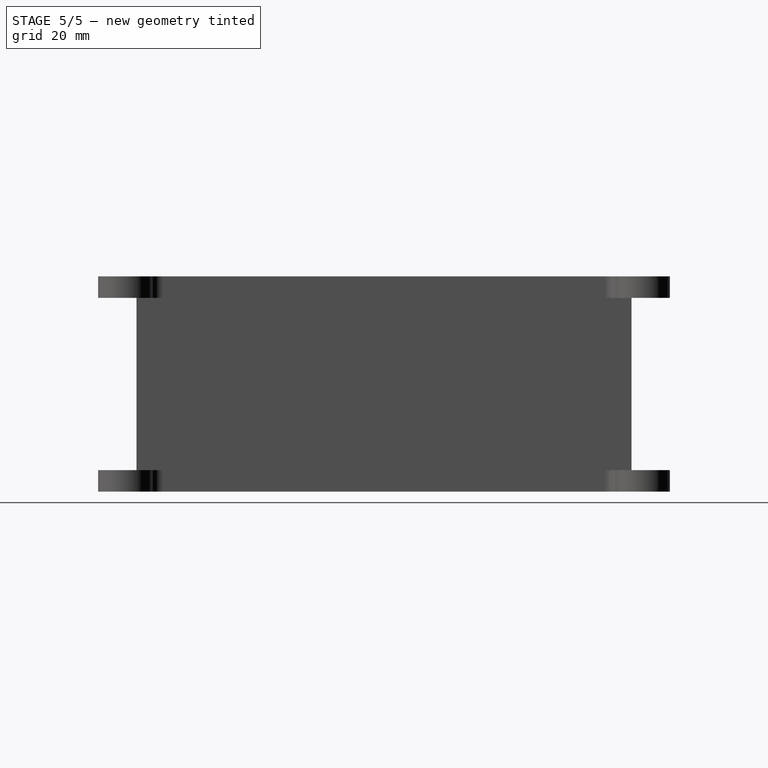
[diagram: stage 5 of 5 — right view after this stage's code; geometry added in this stage tinted green]
FEATURE [Sketcher::SketchObject] Sketch051
  ArcFitTolerance = 1e-06
  AttachmentSupport = -> [Pad001]
  FullyConstrained = true
  MakeInternals = false
  MapMode = 5
  Placement = pos=(0,0,4) rot=(0,0,1;0rad)
  sketch-geometry (28):
    g0: LineSegment StartX=-30.8713 StartY=49.7194 StartZ=0 EndX=-33.8713 EndY=49.7194 EndZ=0
    g1: LineSegment StartX=-33.8713 StartY=49.7194 StartZ=0 EndX=-35.3713 EndY=47.1213 EndZ=0
    g2: LineSegment StartX=-35.3713 StartY=47.1213 StartZ=0 EndX=-33.8713 EndY=44.5232 EndZ=0
    g3: LineSegment StartX=-33.8713 StartY=44.5232 StartZ=0 EndX=-30.8713 EndY=44.5232 EndZ=0
    g4: LineSegment StartX=-30.8713 StartY=44.5232 StartZ=0 EndX=-29.3713 EndY=47.1213 EndZ=0
    g5: LineSegment StartX=-29.3713 StartY=47.1213 StartZ=0 EndX=-30.8713 EndY=49.7194 EndZ=0
    g6: Circle [constr] CenterX=-32.3713 CenterY=47.1213 CenterZ=0 NormalX=0 NormalY=0 NormalZ=1 AngleXU=0 Radius=3
    g7: LineSegment StartX=33.8713 StartY=49.7194 StartZ=0 EndX=30.8713 EndY=49.7194 EndZ=0
    g8: LineSegment StartX=30.8713 StartY=49.7194 StartZ=0 EndX=29.3713 EndY=47.1213 EndZ=0
    g9: LineSegment StartX=29.3713 StartY=47.1213 StartZ=0 EndX=30.8713 EndY=44.5232 EndZ=0
    g10: LineSegment StartX=30.8713 StartY=44.5232 StartZ=0 EndX=33.8713 EndY=44.5232 EndZ=0
    g11: LineSegment StartX=33.8713 StartY=44.5232 StartZ=0 EndX=35.3713 EndY=47.1213 EndZ=0
    g12: LineSegment StartX=35.3713 StartY=47.1213 StartZ=0 EndX=33.8713 EndY=49.7194 EndZ=0
    g13: Circle [constr] CenterX=32.3713 CenterY=47.1213 CenterZ=0 NormalX=0 NormalY=0 NormalZ=1 AngleXU=0 Radius=3
    g14: LineSegment StartX=33.8713 StartY=-44.5232 StartZ=0 EndX=30.8713 EndY=-44.5232 EndZ=0
    g15: LineSegment StartX=30.8713 StartY=-44.5232 StartZ=0 EndX=29.3713 EndY=-47.1213 EndZ=0
    g16: LineSegment StartX=29.3713 StartY=-47.1213 StartZ=0 EndX=30.8713 EndY=-49.7194 EndZ=0
    g17: LineSegment StartX=30.8713 StartY=-49.7194 StartZ=0 EndX=33.8713 EndY=-49.7194 EndZ=0
    g18: LineSegment StartX=33.8713 StartY=-49.7194 StartZ=0 EndX=35.3713 EndY=-47.1213 EndZ=0
    g19: LineSegment StartX=35.3713 StartY=-47.1213 StartZ=0 EndX=33.8713 EndY=-44.5232 EndZ=0
    g20: Circle [constr] CenterX=32.3713 CenterY=-47.1213 CenterZ=0 NormalX=0 NormalY=0 NormalZ=1 AngleXU=0 Radius=3
    g21: LineSegment StartX=-30.8713 StartY=-44.5232 StartZ=0 EndX=-33.8713 EndY=-44.5232 EndZ=0
    g22: LineSegment StartX=-33.8713 StartY=-44.5232 StartZ=0 EndX=-35.3713 EndY=-47.1213 EndZ=0
    g23: LineSegment StartX=-35.3713 StartY=-47.1213 StartZ=0 EndX=-33.8713 EndY=-49.7194 EndZ=0
    g24: LineSegment StartX=-33.8713 StartY=-49.7194 StartZ=0 EndX=-30.8713 EndY=-49.7194 EndZ=0
    g25: LineSegment StartX=-30.8713 StartY=-49.7194 StartZ=0 EndX=-29.3713 EndY=-47.1213 EndZ=0
    g26: LineSegment StartX=-29.3713 StartY=-47.1213 StartZ=0 EndX=-30.8713 EndY=-44.5232 EndZ=0
    g27: Circle [constr] CenterX=-32.3713 CenterY=-47.1213 CenterZ=0 NormalX=0 NormalY=0 NormalZ=1 AngleXU=0 Radius=3
  constraints (65):
    c: Coincident(g0,g1)
    c: Coincident(g1,g2)
    c: Coincident(g2,g3)
    c: Coincident(g3,g4)
    c: Coincident(g4,g5)
    c: Coincident(g5,g0)
    c: Equal(g0, g1-g5) x5
    c: PointOnObject(g0,g6)
    c: PointOnObject(g1,g6)
    c: PointOnObject(g2,g6)
    c: PointOnObject(g3,g6)
    c: PointOnObject(g4,g6)
    c: PointOnObject(g5,g6)
    c: DistanceX(g6) = -32.3713
    c: DistanceY(g6) = 47.1213
    c: Diameter(g6) = 6
    c: Horizontal(g6,g4)
    c: Coincident(g7,g8)
    c: Coincident(g8,g9)
    c: Coincident(g9,g10)
    c: Coincident(g10,g11)
    c: Coincident(g11,g12)
    c: Coincident(g12,g7)
    c: Equal(g7, g8-g12) x5
    c: PointOnObject(g7,g13)
    c: PointOnObject(g8,g13)
    c: PointOnObject(g9,g13)
    c: PointOnObject(g10,g13)
    c: PointOnObject(g11,g13)
    c: PointOnObject(g12,g13)
    c: Diameter(g13) = 6
    c: Symmetric(g13,g6,g-2)
    c: Coincident(g14,g15)
    c: Coincident(g15,g16)
    c: Coincident(g16,g17)
    c: Coincident(g17,g18)
    c: Coincident(g18,g19)
    c: Coincident(g19,g14)
    c: Equal(g14, g15-g19) x5
    c: PointOnObject(g14,g20)
    c: PointOnObject(g15,g20)
    c: PointOnObject(g16,g20)
    c: PointOnObject(g17,g20)
    c: PointOnObject(g18,g20)
    c: PointOnObject(g19,g20)
    c: Coincident(g21,g22)
    c: Coincident(g22,g23)
    c: Coincident(g23,g24)
    c: Coincident(g24,g25)
    c: Coincident(g25,g26)
    c: Coincident(g26,g21)
    c: Equal(g21, g22-g26) x5
    c: PointOnObject(g21,g27)
    c: PointOnObject(g22,g27)
    c: PointOnObject(g23,g27)
    c: PointOnObject(g24,g27)
    c: PointOnObject(g25,g27)
    c: PointOnObject(g26,g27)
    c: Horizontal(g16,g17)
    c: Horizontal(g23,g24)
    c: Diameter(g27) = 6
    c: Diameter(g20) = 6
    c: Symmetric(g20,g13,g-1)
    c: Symmetric(g20,g27,g-2)
    c: Horizontal(g7,g7)
FEATURE [PartDesign::Pocket] Pocket
  BaseFeature = -> Pad001
  Direction = (0,0,-1)
  Length = 2.5
  Length2 = 5
  Profile = -> Sketch051
  ReferenceAxis = -> Sketch051 [N_Axis]
  Refine = true
  Suppressed = false
  Type = 0
FEATURE [Sketcher::SketchObject] Sketch002
  ArcFitTolerance = 0
  AttachmentSupport = -> [Pocket]
  FullyConstrained = true
  MakeInternals = false
  MapMode = 5
  Placement = pos=(30.25,0,-8.3e-15) rot=(0.57735,0.57735,0.57735;2.0944rad)
  sketch-geometry (2):
    g0: Circle CenterX=-23 CenterY=6 CenterZ=0 NormalX=0 NormalY=0 NormalZ=1 AngleXU=0 Radius=4.25
    g1: Circle CenterX=23 CenterY=6 CenterZ=0 NormalX=0 NormalY=0 NormalZ=1 AngleXU=0 Radius=4.25
  constraints (5):
    c: Symmetric(g0,g1,g-2)
    c: Diameter(g1) = 8.5
    c: Equal(g0,g1)
    c: DistanceX(g1) = 23
    c: DistanceY(g1) = 6
FEATURE [PartDesign::Pocket] Pocket001
  BaseFeature = -> Pocket
  Direction = (-1,0,0)
  Length = 60.5
  Length2 = 5
  Profile = -> Sketch002
  ReferenceAxis = -> Sketch002 [N_Axis]
  Refine = true
  Suppressed = false
  Type = 0
FEATURE [Sketcher::SketchObject] Sketch050
  ArcFitTolerance = 0
  AttachmentSupport = -> [Pocket001]
  FullyConstrained = true
  MakeInternals = false
  MapMode = 5
  Placement = pos=(0,0,12) rot=(0,0,1;0rad)
  sketch-geometry (16):
    g0: LineSegment StartX=-28.25 StartY=43 StartZ=0 EndX=28.25 EndY=43 EndZ=0
    g1: LineSegment StartX=28.25 StartY=43 StartZ=0 EndX=28.25 EndY=28 EndZ=0
    g2: LineSegment StartX=28.25 StartY=28 StartZ=0 EndX=-28.25 EndY=28 EndZ=0
    g3: LineSegment StartX=-28.25 StartY=28 StartZ=0 EndX=-28.25 EndY=43 EndZ=0
    g4: LineSegment StartX=28.25 StartY=17.3 StartZ=0 EndX=28.25 EndY=-17.3 EndZ=0
    g5: LineSegment StartX=-28.25 StartY=-17.3 StartZ=0 EndX=-28.25 EndY=17.3 EndZ=0
    g6: LineSegment StartX=-28.25 StartY=-27 StartZ=0 EndX=28.25 EndY=-27 EndZ=0
    g7: LineSegment StartX=28.25 StartY=-27 StartZ=0 EndX=28.25 EndY=-43 EndZ=0
    g8: LineSegment StartX=28.25 StartY=-43 StartZ=0 EndX=-28.25 EndY=-43 EndZ=0
    g9: LineSegment StartX=-28.25 StartY=-43 StartZ=0 EndX=-28.25 EndY=-27 EndZ=0
    g10: LineSegment StartX=-5 StartY=17.3 StartZ=0 EndX=-5 EndY=-17.3 EndZ=0
    g11: LineSegment StartX=5 StartY=17.3 StartZ=0 EndX=5 EndY=-17.3 EndZ=0
    g12: LineSegment StartX=-28.25 StartY=17.3 StartZ=0 EndX=-5 EndY=17.3 EndZ=0
    g13: LineSegment StartX=5 StartY=17.3 StartZ=0 EndX=28.25 EndY=17.3 EndZ=0
    g14: LineSegment StartX=5 StartY=-17.3 StartZ=0 EndX=28.25 EndY=-17.3 EndZ=0
    g15: LineSegment StartX=-28.25 StartY=-17.3 StartZ=0 EndX=-5 EndY=-17.3 EndZ=0
  constraints (48):
    c: Coincident(g0,g1)
    c: Coincident(g1,g2)
    c: Coincident(g2,g3)
    c: Coincident(g3,g0)
    c: Horizontal(g0)
    c: Horizontal(g2)
    c: Vertical(g1)
    c: Vertical(g3)
    c: Vertical(g4)
    c: Vertical(g5)
    c: Coincident(g6,g7)
    c: Coincident(g7,g8)
    c: Coincident(g8,g9)
    c: Coincident(g9,g6)
    c: Horizontal(g6)
    c: Horizontal(g8)
    c: Vertical(g7)
    c: Vertical(g9)
    c: Distance(g0) = 56.5
    c: DistanceX(g-1,g1) = 28.25
    c: Vertical(g1,g4)
    c: Vertical(g4,g6)
    c: Distance(g1) = 15
    c: DistanceY(g-1,g0) = 43
    c: Distance(g4) = 34.6
    c: DistanceY(g-1,g4) = 17.3
    c: DistanceY(g8,g-1) = 43
    c: Distance(g7) = 16
    c: Vertical(g10)
    c: Vertical(g11)
    c: DistanceX(g10,g11) = 10
    c: DistanceX(g-1,g11) = 5
    c: Coincident(g12,g5)
    c: Coincident(g12,g10)
    c: Horizontal(g12)
    c: Coincident(g13,g11)
    c: Coincident(g13,g4)
    c: Horizontal(g13)
    c: Coincident(g14,g11)
    c: Coincident(g14,g4)
    c: Horizontal(g14)
    c: Coincident(g15,g5)
    c: Coincident(g15,g10)
    c: Horizontal(g15)
    c: Horizontal(g10,g11)
    c: Horizontal(g10,g11)
    c: DistanceX(g5,g-1) = 28.25
    c: Vertical(g6,g5)
FEATURE [PartDesign::Pocket] Pocket002
  BaseFeature = -> Pocket001
  Direction = (0,0,-1)
  Length = 12
  Length2 = 5
  Profile = -> Sketch050
  ReferenceAxis = -> Sketch050 [N_Axis]
  Refine = true
  Suppressed = false
  Type = 0
FEATURE [Sketcher::SketchObject] Sketch053
  ArcFitTolerance = 1e-06
  AttachmentSupport = -> [Pocket002]
  FullyConstrained = true
  MakeInternals = false
  MapMode = 5
  Placement = pos=(0,0,1.5) rot=(0,0,1;0rad)
  sketch-geometry (4):
    g0: Circle CenterX=-32.3713 CenterY=47.1213 CenterZ=0 NormalX=0 NormalY=0 NormalZ=1 AngleXU=0 Radius=1.5
    g1: Circle CenterX=32.3713 CenterY=47.1213 CenterZ=0 NormalX=0 NormalY=0 NormalZ=1 AngleXU=0 Radius=1.5
    g2: Circle CenterX=-32.3713 CenterY=-47.1213 CenterZ=0 NormalX=0 NormalY=0 NormalZ=1 AngleXU=0 Radius=1.5
    g3: Circle CenterX=32.3713 CenterY=-47.1213 CenterZ=0 NormalX=0 NormalY=0 NormalZ=1 AngleXU=0 Radius=1.5
  constraints (9):
    c: Diameter(g0) = 3
    c: Equal(g0,g1)
    c: Equal(g3,g2)
    c: Symmetric(g0,g1,g-2)
    c: Symmetric(g3,g2,g-2)
    c: Symmetric(g0,g2,g-1)
    c: DistanceX(g0) = -32.3713
    c: DistanceY(g0) = 47.1213
    c: Equal(g0,g2)
FEATURE [PartDesign::Pocket] Pocket003
  BaseFeature = -> Pocket002
  Direction = (0,0,-1)
  Length = 1.5
  Length2 = 5
  Profile = -> Sketch053
  ReferenceAxis = -> Sketch053 [N_Axis]
  Refine = true
  Suppressed = false
  Type = 0
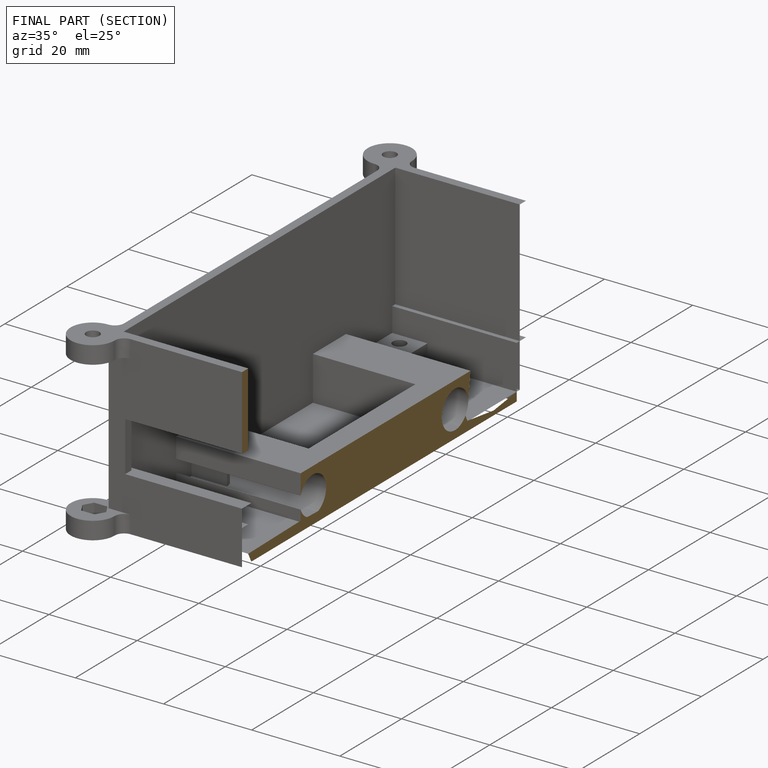
[diagram: finished part — half-section view (interior)]
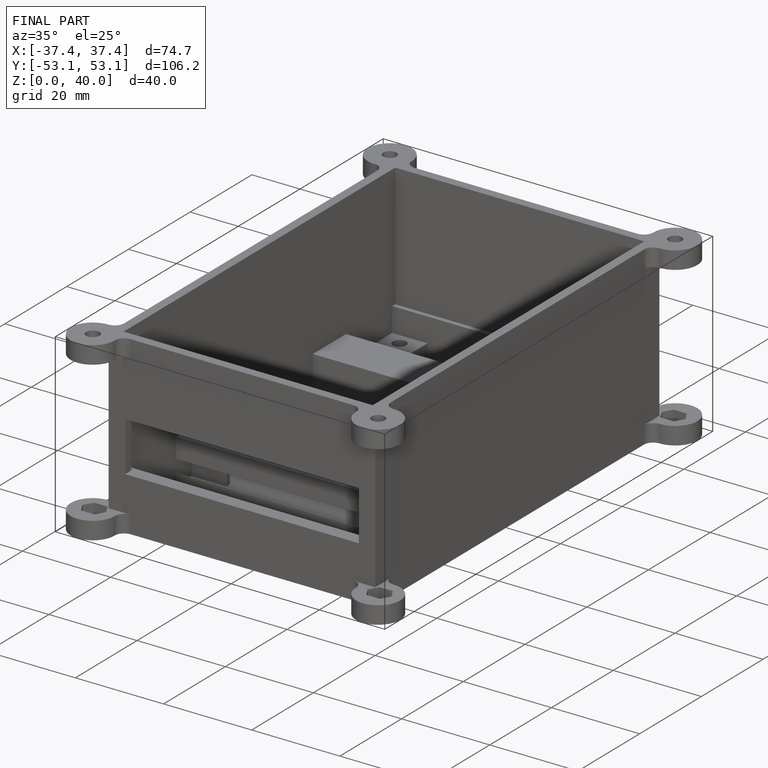
[diagram: finished part — iso view with bounding-box wireframe]
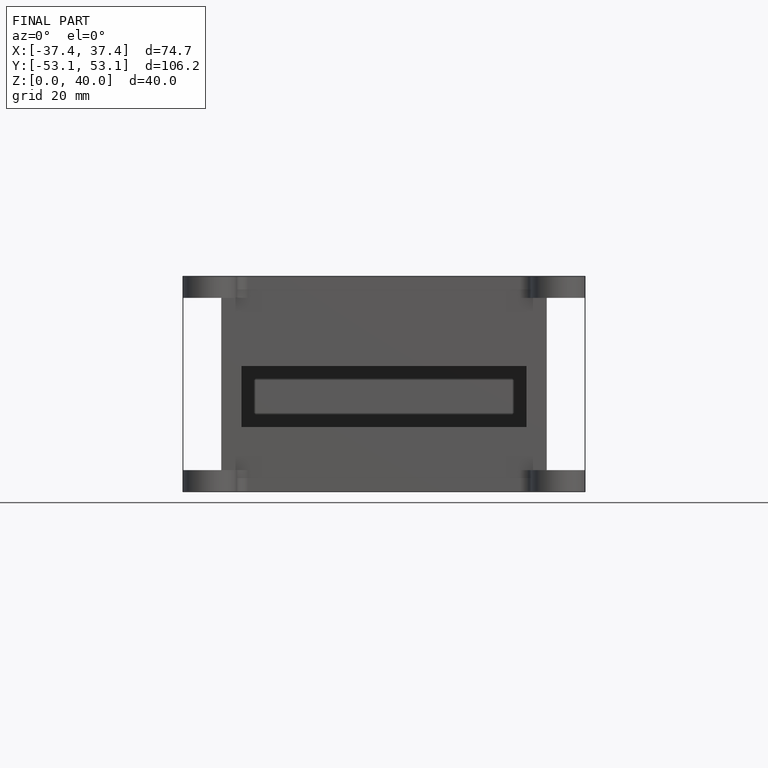
[diagram: finished part — front view with bounding-box wireframe]
